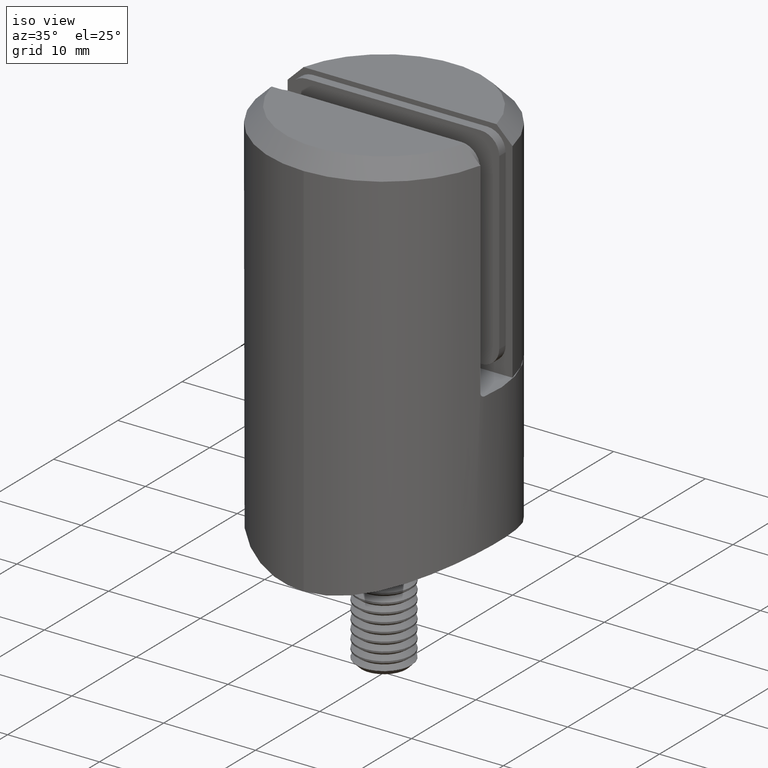
[diagram: clean part render]
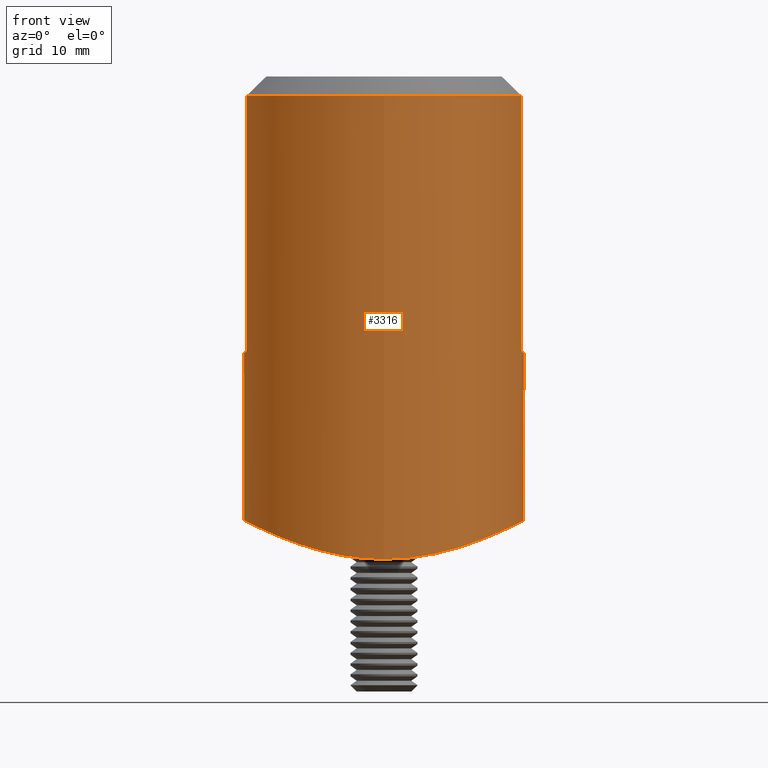
[diagram: tour spotlight — one face highlighted and labeled with its STEP entity id]
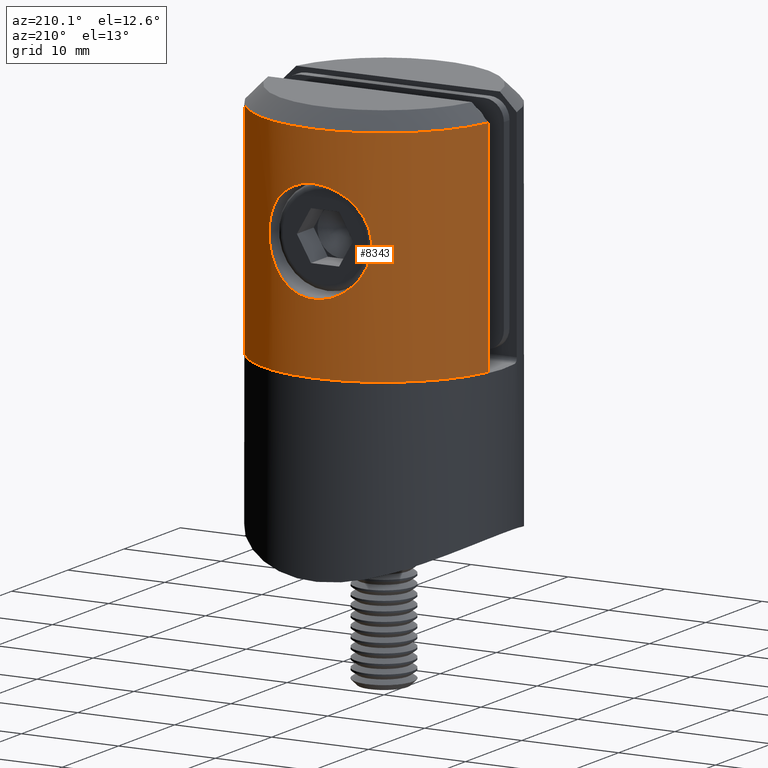
[diagram: tour spotlight — one face highlighted and labeled with its STEP entity id]
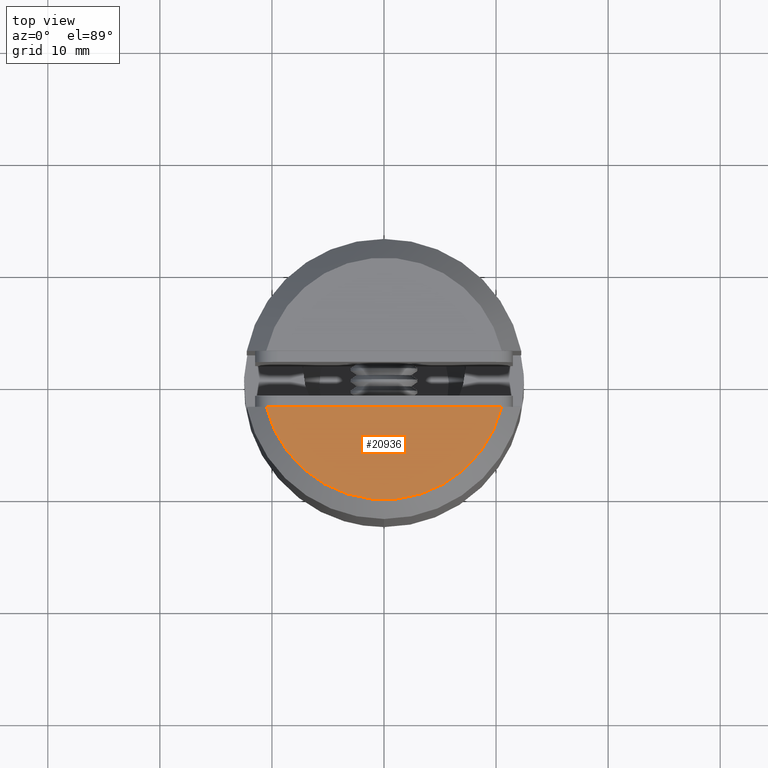
[diagram: tour spotlight — one face highlighted and labeled with its STEP entity id]
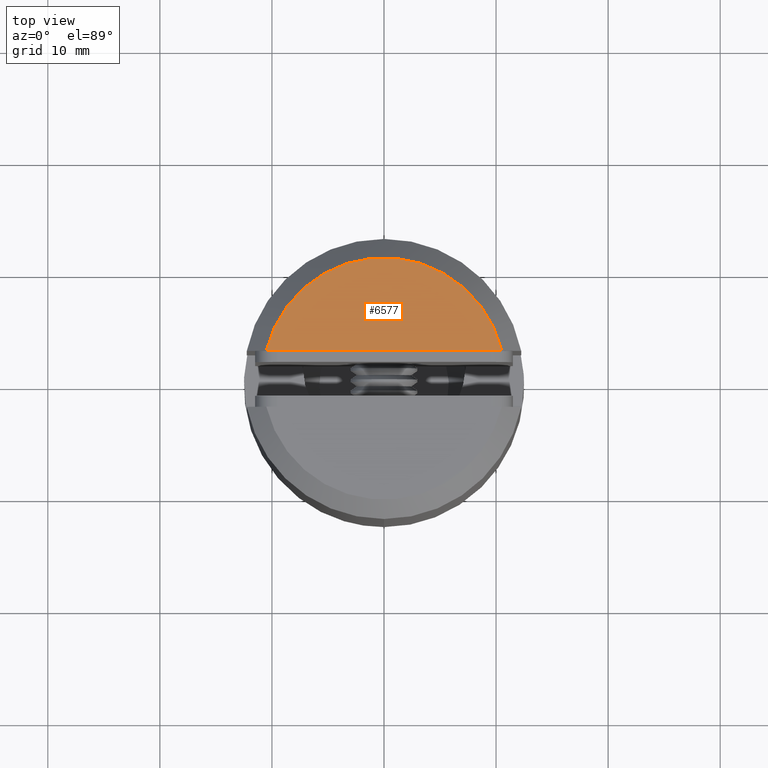
[diagram: tour spotlight — one face highlighted and labeled with its STEP entity id]
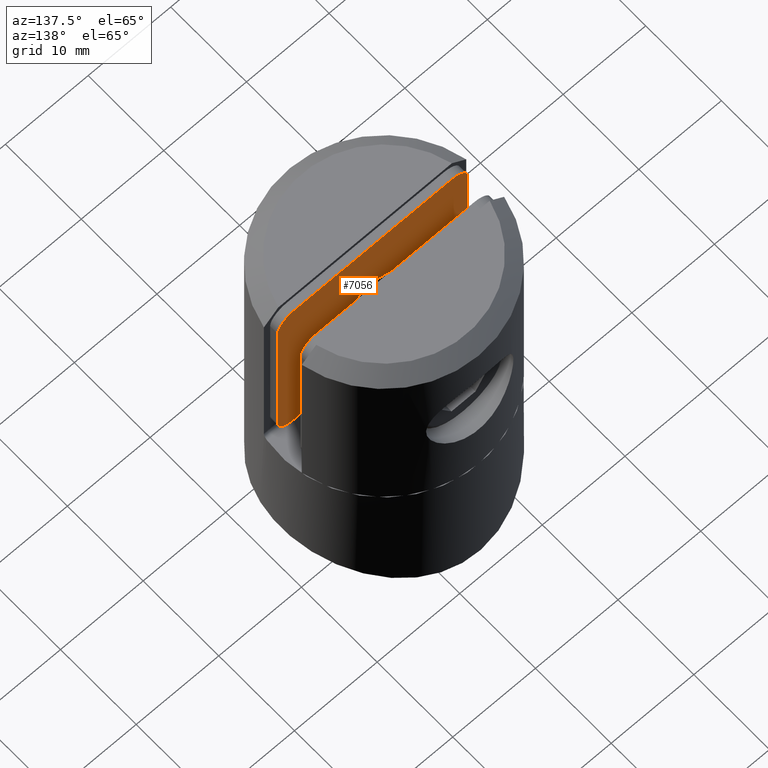
[diagram: tour spotlight — one face highlighted and labeled with its STEP entity id]
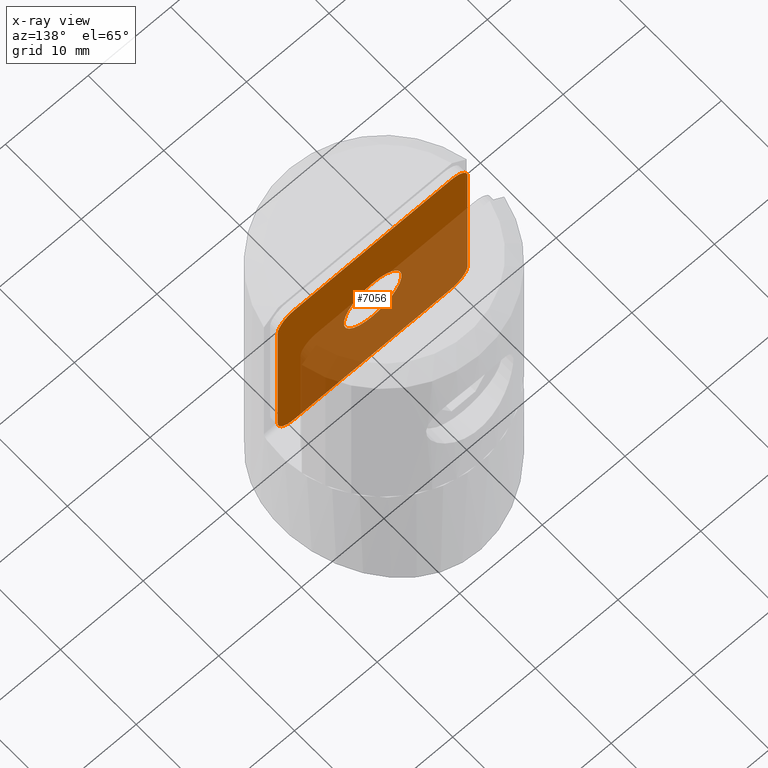
[diagram: x-ray of the same camera — body ghosted, this tour face saturated]
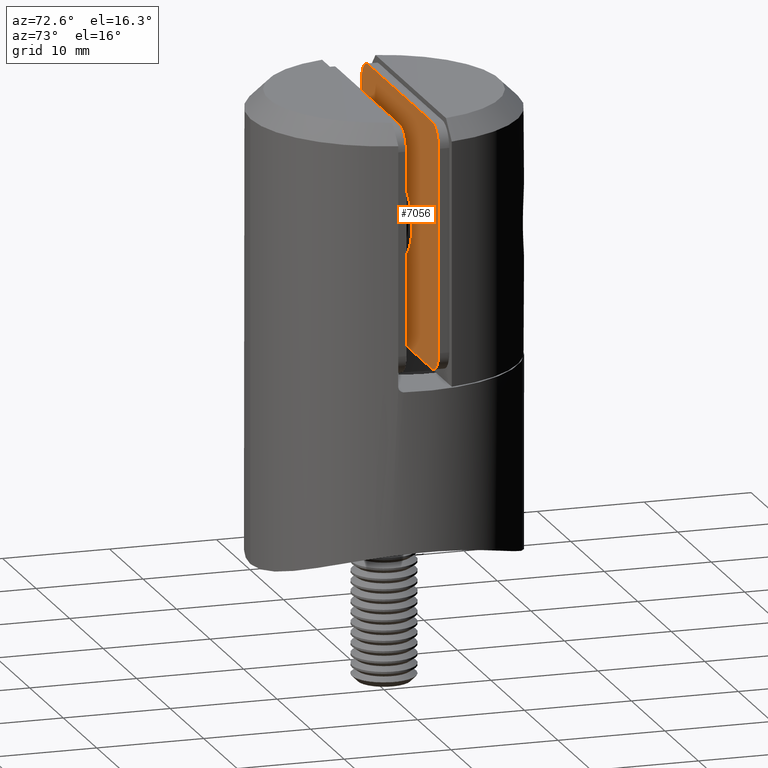
[diagram: tour spotlight — one face highlighted and labeled with its STEP entity id]
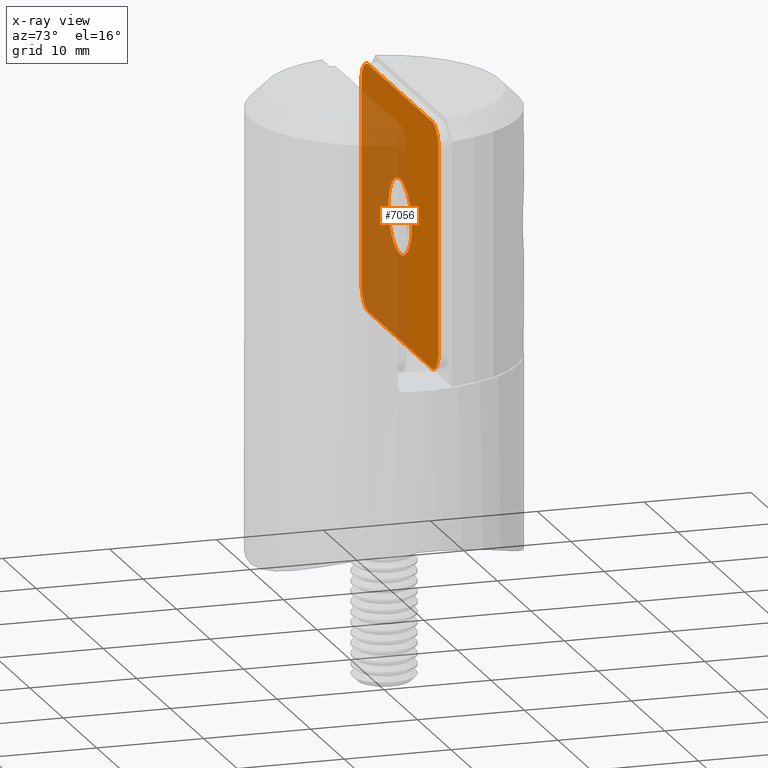
[diagram: x-ray of the same camera — body ghosted, this tour face saturated]
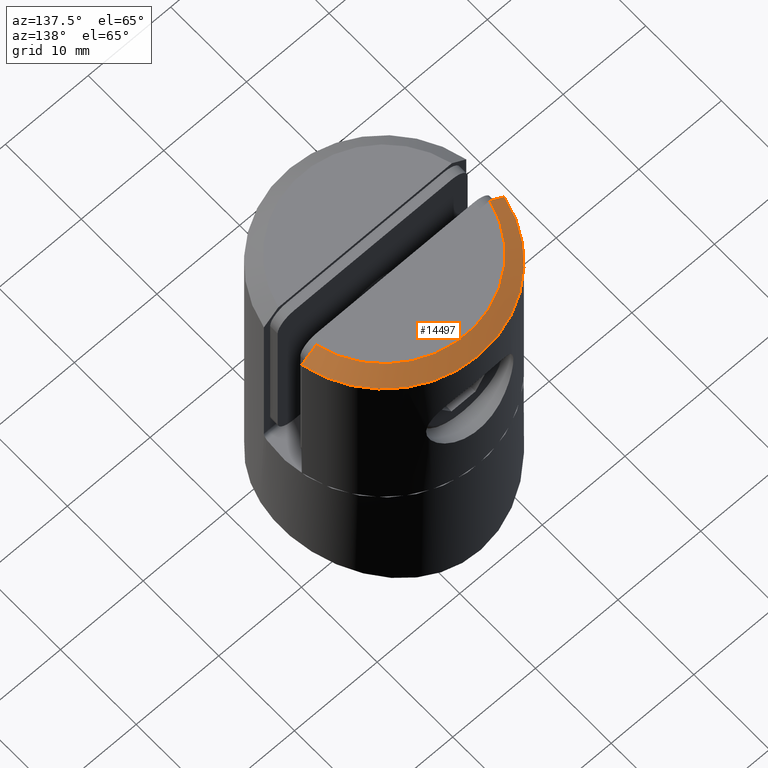
[diagram: tour spotlight — one face highlighted and labeled with its STEP entity id]
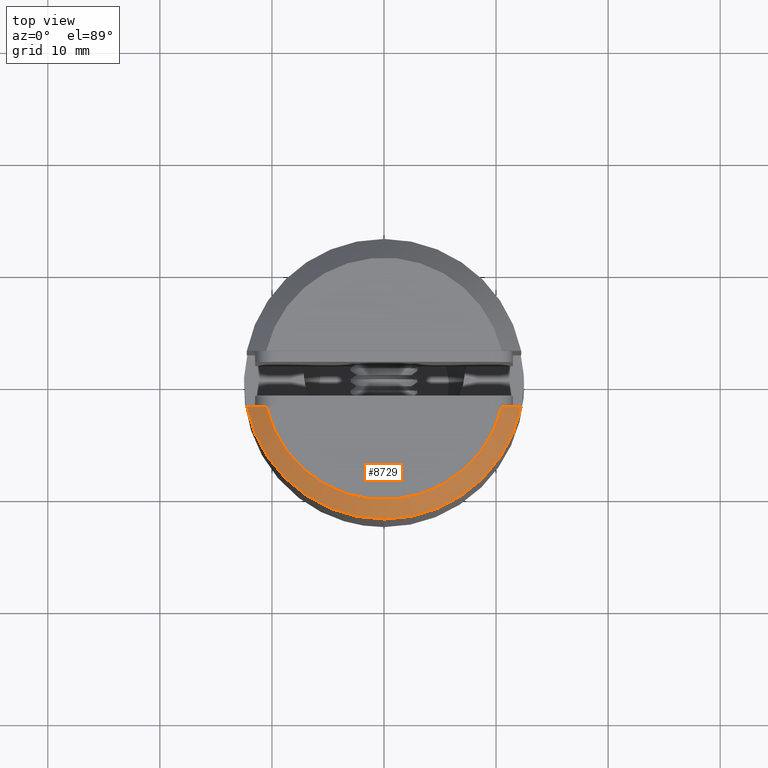
[diagram: tour spotlight — one face highlighted and labeled with its STEP entity id]
A machine part: a face-by-face anatomy tour. The part has 721 B-rep faces; the first image is the clean iso view, then the 8 largest visible faces are spotlighted one at a time (largest first), each with its STEP entity span.

Face 1 — front view, entity #3316. In plain terms, the highlighted cylindrical surface (bore or boss wall) has radius 12.5 mm, axis along (0, -0, 1).
Definition (entity closure, byte-faithful):
#29 = CARTESIAN_POINT ( 'NONE',  ( 12.24744871391589207, -2.500000000000003997, 39.59999999999999432 ) ) ;
#38 = CARTESIAN_POINT ( 'NONE',  ( -12.09338547203985037, -3.269625514794806342, -0.2083464742693253990 ) ) ;
#45 = VECTOR ( 'NONE', #22269, 1000.000000000000000 ) ;
#98 = DIRECTION ( 'NONE',  ( -0.000000000000000000, -0.000000000000000000, -1.000000000000000000 ) ) ;
#201 = CARTESIAN_POINT ( 'NONE',  ( 4.484795657498198196, 11.67477783134100555, -3.008711266696773468 ) ) ;
#220 = CARTESIAN_POINT ( 'NONE',  ( 9.893379601106229160, -7.650706578991893103, -1.241543153467105309 ) ) ;
#283 = CARTESIAN_POINT ( 'NONE',  ( -11.83144900502481534, 4.114442792479470867, -0.3407743584121446512 ) ) ;
#305 = CARTESIAN_POINT ( 'NONE',  ( 0.8420330696389416447, -12.49999999999999467, -3.486687100080005486 ) ) ;
#388 = CARTESIAN_POINT ( 'NONE',  ( 4.069045550123880695, -11.82642121061761209, -3.093460465655071268 ) ) ;
#1083 = ORIENTED_EDGE ( 'NONE', *, *, #2545, .T. ) ;
#1817 = CARTESIAN_POINT ( 'NONE',  ( -12.47717183604786584, 0.8617560206829455449, -0.01183519318938777536 ) ) ;
#1897 = CARTESIAN_POINT ( 'NONE',  ( -12.07689183496742480, 3.331619642185145835, -0.2166994813412659038 ) ) ;
#1974 = CARTESIAN_POINT ( 'NONE',  ( -12.49886017228204338, 0.4478171727676704128, -0.0005899714594872679024 ) ) ;
#2045 = CARTESIAN_POINT ( 'NONE',  ( -9.896185449625617636, 7.679408471396363289, -1.242758516869269192 ) ) ;
#2068 = CARTESIAN_POINT ( 'NONE',  ( 11.20163797133091244, -5.606760663478955742, -0.6473854300975461218 ) ) ;
#2108 = CARTESIAN_POINT ( 'NONE',  ( -12.33896267925306667, -2.000000000000003997, 15.00000000000000000 ) ) ;
#2127 = CARTESIAN_POINT ( 'NONE',  ( -11.19774646827645626, -5.570164365274847817, -0.6482365588539855672 ) ) ;
#2146 = CARTESIAN_POINT ( 'NONE',  ( 10.82995629359309220, 6.294224417705431840, -0.8240927564725724075 ) ) ;
#2195 = CARTESIAN_POINT ( 'NONE',  ( 12.31766359438306857, -2.131404306656573766, 15.00000000000000000 ) ) ;
#2220 = CARTESIAN_POINT ( 'NONE',  ( 11.67600036255593388, -4.481811032179747301, -0.4164286492411054530 ) ) ;
#2545 = EDGE_CURVE ( 'NONE', #23162, #18210, #17465, .T. ) ;
#2609 = VERTEX_POINT ( 'NONE', #11389 ) ;
#3125 = CARTESIAN_POINT ( 'NONE',  ( 12.33896267925306667, -2.000000000000003997, 15.00000000000000000 ) ) ;
#3316 = ADVANCED_FACE ( 'NONE', ( #14508, #9908 ), #8494, .T. ) ;
#3637 = CARTESIAN_POINT ( 'NONE',  ( -9.396734289905666060, -8.253168535166967246, -1.451608363106684951 ) ) ;
#3723 = CARTESIAN_POINT ( 'NONE',  ( 3.794707603699265519E-16, -12.50000000000000000, -3.486687100080006374 ) ) ;
#3806 = CARTESIAN_POINT ( 'NONE',  ( -3.257362557410850457, 12.09644236928157746, -3.247036497938600608 ) ) ;
#3885 = CARTESIAN_POINT ( 'NONE',  ( 6.314141496897319072, 10.81854343925186157, -2.552913839582434452 ) ) ;
#3902 = CARTESIAN_POINT ( 'NONE',  ( 12.06234186209243653, -3.304806806487619930, -0.2238365123167636028 ) ) ;
#3940 = CARTESIAN_POINT ( 'NONE',  ( -12.31767007144812887, -2.131364346524550424, 15.00000000000000000 ) ) ;
#3959 = CARTESIAN_POINT ( 'NONE',  ( 4.102638119957512153, 11.81469052628676408, -3.086874833940652429 ) ) ;
#3978 = CARTESIAN_POINT ( 'NONE',  ( 2.877892738570855702, -12.17117554739143159, -3.291094421596790554 ) ) ;
#4059 = CARTESIAN_POINT ( 'NONE',  ( 12.41359620020111443, -1.684281685711139120, -0.04502740789206238076 ) ) ;
#4395 = EDGE_CURVE ( 'NONE', #10058, #10058, #13633, .T. ) ;
#5243 = DIRECTION ( 'NONE',  ( -0.000000000000000000, -8.839393595184489370E-19, 1.000000000000000000 ) ) ;
#5420 = CARTESIAN_POINT ( 'NONE',  ( 3.794707603699265519E-16, -12.50000000000000000, -3.486687100080006374 ) ) ;
#5479 = CARTESIAN_POINT ( 'NONE',  ( -0.3743966600937669309, 12.50127237248500833, -3.487456799512486327 ) ) ;
#5563 = CARTESIAN_POINT ( 'NONE',  ( -10.79181700430863877, 6.320805790922927159, -0.8389214614204771880 ) ) ;
#5624 = ORIENTED_EDGE ( 'NONE', *, *, #21160, .T. ) ;
#5641 = CARTESIAN_POINT ( 'NONE',  ( -9.384542520102025165, 8.295979379960838784, -1.461483283196771898 ) ) ;
#5721 = CARTESIAN_POINT ( 'NONE',  ( -6.276934725431979167, 10.83971380107705507, -2.563679882834653867 ) ) ;
#5741 = CARTESIAN_POINT ( 'NONE',  ( 4.456470322436524967, -11.68571052798450438, -3.014750073192299595 ) ) ;
#5804 = CARTESIAN_POINT ( 'NONE',  ( -2.040490887379597940, 12.33926574575910706, -3.390090410938651821 ) ) ;
#5826 = CARTESIAN_POINT ( 'NONE',  ( 9.396216651987572277, 8.253756614523814150, -1.451822711364580520 ) ) ;
#5906 = CARTESIAN_POINT ( 'NONE',  ( 8.544220005459459699, -9.132697872976139664, -1.791368050699008174 ) ) ;
#6132 = CARTESIAN_POINT ( 'NONE',  ( -12.24744871391589207, -2.500000000000003997, 37.89999999999999858 ) ) ;
#7311 = VERTEX_POINT ( 'NONE', #3125 ) ;
#7352 = CARTESIAN_POINT ( 'NONE',  ( -7.651204074273035616, -9.917544363711913391, -2.124719512559996915 ) ) ;
#7428 = CARTESIAN_POINT ( 'NONE',  ( -1.628004865284973235, 12.40066171425556085, -3.426864559967107926 ) ) ;
#7513 = CARTESIAN_POINT ( 'NONE',  ( -4.044332357530218580, 11.85628279557731268, -3.107641007429138735 ) ) ;
#7538 = CARTESIAN_POINT ( 'NONE',  ( 12.17505368981022329, 2.861587711683103663, -0.1666816797375139658 ) ) ;
#7599 = CARTESIAN_POINT ( 'NONE',  ( -11.85217655018235661, -4.056448218479623335, -0.3304757533166574057 ) ) ;
#7619 = CARTESIAN_POINT ( 'NONE',  ( 5.583598371836742125, -11.21326278727308967, -2.758092237636965649 ) ) ;
#7673 = CARTESIAN_POINT ( 'NONE',  ( -4.092446727226314529, -11.83899578688737009, -3.097948591304157340 ) ) ;
#7691 = CARTESIAN_POINT ( 'NONE',  ( 10.81700827973986101, -6.316522095881035526, -0.8301302491084197044 ) ) ;
#7771 = CARTESIAN_POINT ( 'NONE',  ( 12.07408571571930089, 3.261416190376115853, -0.2179059763215995538 ) ) ;
#7875 = CIRCLE ( 'NONE', #12296, 12.50000000000000178 ) ;
#7972 = CARTESIAN_POINT ( 'NONE',  ( -12.24744871391589207, -2.500000000000003997, 15.50000000000000000 ) ) ;
#8086 = CARTESIAN_POINT ( 'NONE',  ( 0.000000000000000000, -12.50000000000000000, -3.486687100080005486 ) ) ;
#8113 = VECTOR ( 'NONE', #98, 1000.000000000000000 ) ;
#8494 = CYLINDRICAL_SURFACE ( 'NONE', #18767, 12.50000000000000000 ) ;
#8577 = CARTESIAN_POINT ( 'NONE',  ( 0.000000000000000000, -9.766859891323573861E-36, 15.00000000000000000 ) ) ;
#8725 = EDGE_CURVE ( 'NONE', #2609, #16452, #14283, .T. ) ;
#9172 = CARTESIAN_POINT ( 'NONE',  ( -1.677142387246838728, -12.39408917981394787, -3.422928609231023600 ) ) ;
#9341 = CARTESIAN_POINT ( 'NONE',  ( -12.39246884653307923, 1.687944416489005839, -0.05550960641048760524 ) ) ;
#9359 = CARTESIAN_POINT ( 'NONE',  ( 11.69115801580465153, 4.442511902019132819, -0.4089703082988599969 ) ) ;
#9416 = CARTESIAN_POINT ( 'NONE',  ( -6.301623554939014937, -10.80307550227448488, -2.549915663960815149 ) ) ;
#9438 = CARTESIAN_POINT ( 'NONE',  ( 10.13775191039843726, -7.323934467288832018, -1.134667000770246181 ) ) ;
#9492 = CARTESIAN_POINT ( 'NONE',  ( 12.33896267925306667, -2.000000000000003997, 15.00000000000000000 ) ) ;
#9497 = CARTESIAN_POINT ( 'NONE',  ( -12.33816267713975989, -2.047522294877610616, -0.08347067834122730290 ) ) ;
#9696 = DIRECTION ( 'NONE',  ( 0.000000000000000000, -1.000000000000000000, 0.000000000000000000 ) ) ;
#9908 = FACE_OUTER_BOUND ( 'NONE', #18401, .T. ) ;
#10058 = VERTEX_POINT ( 'NONE', #8086 ) ;
#10225 = EDGE_CURVE ( 'NONE', #7311, #14604, #11832, .T. ) ;
#10406 = EDGE_LOOP ( 'NONE', ( #18437 ) ) ;
#10777 = DIRECTION ( 'NONE',  ( 0.000000000000000000, -1.000000000000000000, 0.000000000000000000 ) ) ;
#11014 = CARTESIAN_POINT ( 'NONE',  ( -7.616732032239020178, 9.944078538791721655, -2.136733238695819992 ) ) ;
#11090 = CARTESIAN_POINT ( 'NONE',  ( -6.649254742986303590, -10.59242955421302668, -2.445507888269208507 ) ) ;
#11165 = CARTESIAN_POINT ( 'NONE',  ( 12.25896829256023501, -2.444702917753897253, 15.23688351496662996 ) ) ;
#11169 = CARTESIAN_POINT ( 'NONE',  ( -11.18041048547914862, 5.604848033375923855, -0.6564977706356068810 ) ) ;
#11178 = ORIENTED_EDGE ( 'NONE', *, *, #14765, .F. ) ;
#11187 = CARTESIAN_POINT ( 'NONE',  ( 9.380255193395514723, -8.271824683598607564, -1.458423971634351890 ) ) ;
#11250 = CARTESIAN_POINT ( 'NONE',  ( -10.60149335878784171, -6.634860695765055105, -0.9266566134114211373 ) ) ;
#11271 = CARTESIAN_POINT ( 'NONE',  ( 3.277664399894878677, -12.06972602926805926, -3.231974056073402934 ) ) ;
#11329 = CARTESIAN_POINT ( 'NONE',  ( -5.564717128929109968, 11.22327889798126144, -2.763314317569939949 ) ) ;
#11348 = CARTESIAN_POINT ( 'NONE',  ( 12.50092854068959625, 0.3879436103226354127, 0.0004806101693038293868 ) ) ;
#11382 = CARTESIAN_POINT ( 'NONE',  ( -12.24744871391589207, -2.500000000000003997, 39.59999999999999432 ) ) ;
#11389 = CARTESIAN_POINT ( 'NONE',  ( 12.24744871391589207, -2.500000000000003997, 37.89999999999999858 ) ) ;
#11832 = B_SPLINE_CURVE_WITH_KNOTS ( 'NONE', 3,
 ( #9492, #2195, #20363, #11165, #14856, #20451 ),
 .UNSPECIFIED., .F., .F.,
 ( 4, 2, 4 ),
 ( 0.000000000000000000, 0.0003936914607459281678, 0.0007873829214918563356 ),
 .UNSPECIFIED. ) ;
#12296 = AXIS2_PLACEMENT_3D ( 'NONE', #8577, #15849, #9696 ) ;
#12606 = CARTESIAN_POINT ( 'NONE',  ( -12.24744871391589207, -2.500000000000003997, 15.50000000000000000 ) ) ;
#12859 = CARTESIAN_POINT ( 'NONE',  ( -0.4210165348194701562, -12.50000000000000355, -3.486687100080006374 ) ) ;
#13025 = CARTESIAN_POINT ( 'NONE',  ( -8.247693690637230901, 9.427006999560417100, -1.907616950703464154 ) ) ;
#13082 = CARTESIAN_POINT ( 'NONE',  ( -12.25895434034246101, -2.444765932025573907, 15.23707057295127143 ) ) ;
#13101 = CARTESIAN_POINT ( 'NONE',  ( -12.32921864664979417, 2.101337436378892587, -0.08806124254263981987 ) ) ;
#13120 = CARTESIAN_POINT ( 'NONE',  ( 12.16596872606742608, -2.900042898125258173, -0.1712958376644658220 ) ) ;
#13207 = CARTESIAN_POINT ( 'NONE',  ( 6.293961627254427427, -10.83014519783097995, -2.558789604559105424 ) ) ;
#13633 = B_SPLINE_CURVE_WITH_KNOTS ( 'NONE', 3,
 ( #5420, #305, #22298, #3978, #11271, #388, #5741, #7619, #13207, #20555, #14884, #16878, #5906, #18722, #11187, #220, #9438, #7691, #2068, #2220, #15047, #3902, #13120, #4059, #20394, #11348, #16722, #18559, #16804, #7538, #7771, #20308, #9359, #22146, #2146, #22221, #14963, #5826, #18639, #20476, #18464, #3885, #21960, #201, #3959, #20286, #14789, #14859, #16457, #5479, #18621, #7428, #5804, #3806, #7513, #11329, #5721, #11014, #13025, #5641, #2045, #16701, #5563, #11169, #18304, #283, #1897, #13101, #9341, #1817, #1974, #16614, #14711, #18540, #9497, #38, #7599, #14940, #2127, #14626, #11250, #20204, #22125, #3637, #18381, #20368, #7352, #11090, #9416, #22202, #16785, #7673, #20455, #20128, #9172, #22278, #12859, #3723 ),
 .UNSPECIFIED., .T., .F.,
 ( 4, 2, 2, 2, 2, 2, 2, 2, 2, 2, 2, 2, 2, 2, 2, 2, 2, 2, 2, 2, 2, 2, 2, 2, 2, 2, 2, 2, 2, 2, 2, 2, 2, 2, 2, 2, 2, 2, 2, 2, 2, 2, 2, 2, 2, 2, 2, 2, 4 ),
 ( 0.000000000000000000, 0.002485739536903473334, 0.003728609305355210218, 0.004971479073806947535, 0.007457218610710422170, 0.008700088379162158186, 0.009942958147613895070, 0.01118582791606563195, 0.01242869768451736537, 0.01491443722142083914, 0.01615730698987257602, 0.01740017675832431290, 0.01988591629522777973, 0.02112878606367952009, 0.02237165583213125350, 0.02361452560058299038, 0.02485739536903472380, 0.02734313490593820103, 0.02858600467438993445, 0.02982887444284167480, 0.03231461397974513816, 0.03480035351664859805, 0.03604322328510033147, 0.03728609305355207182, 0.03977183259045552477, 0.04101470235890725818, 0.04225757212735900548, 0.04474331166426246537, 0.04722905120116593219, 0.04971479073806939208, 0.05220053027497285891, 0.05344340004342458539, 0.05468626981187631880, 0.05717200934877977175, 0.05841487911723150517, 0.05965774888568323164, 0.06090061865413495812, 0.06214348842258669153, 0.06462922795949015142, 0.06587209772794189178, 0.06711496749639360437, 0.06835783726484533085, 0.06960070703329707120, 0.07208644657020055191, 0.07332931633865227838, 0.07457218610710401874, 0.07705792564400748557, 0.07830079541245922592, 0.07954366518091096627 ),
 .UNSPECIFIED. ) ;
#13964 = LINE ( 'NONE', #11382, #8113 ) ;
#14283 = CIRCLE ( 'NONE', #19584, 12.50000000000000000 ) ;
#14508 = FACE_OUTER_BOUND ( 'NONE', #10406, .T. ) ;
#14604 = VERTEX_POINT ( 'NONE', #22404 ) ;
#14626 = CARTESIAN_POINT ( 'NONE',  ( -10.81093404035207861, -6.288080963150203040, -0.8300588829938706503 ) ) ;
#14678 = LINE ( 'NONE', #29, #45 ) ;
#14711 = CARTESIAN_POINT ( 'NONE',  ( -12.48155879906584254, -0.7973743908658439405, -0.009565081974144943114 ) ) ;
#14765 = EDGE_CURVE ( 'NONE', #7311, #18210, #7875, .T. ) ;
#14789 = CARTESIAN_POINT ( 'NONE',  ( 2.913643217103089267, 12.16279320612885506, -3.286196029300535670 ) ) ;
#14856 = CARTESIAN_POINT ( 'NONE',  ( 12.24744871391589207, -2.500000000000003997, 15.36682287106853018 ) ) ;
#14859 = CARTESIAN_POINT ( 'NONE',  ( 1.691695994183606500, 12.41287984916325193, -3.433332008704867544 ) ) ;
#14884 = CARTESIAN_POINT ( 'NONE',  ( 7.627850411005501208, -9.910951493450541605, -2.125630541354957881 ) ) ;
#14931 = DIRECTION ( 'NONE',  ( 0.000000000000000000, 8.839393595184493222E-19, -1.000000000000000000 ) ) ;
#14940 = CARTESIAN_POINT ( 'NONE',  ( -11.37593658114307260, -5.196901209690826917, -0.5626046438230178914 ) ) ;
#14963 = CARTESIAN_POINT ( 'NONE',  ( 9.909828926624138390, 7.629461073229731660, -1.234435983153442384 ) ) ;
#15047 = CARTESIAN_POINT ( 'NONE',  ( 11.81688690885650139, -4.096708802134998884, -0.3466383832437867629 ) ) ;
#15849 = DIRECTION ( 'NONE',  ( -0.000000000000000000, -8.839393595184489370E-19, 1.000000000000000000 ) ) ;
#16059 = ORIENTED_EDGE ( 'NONE', *, *, #23111, .F. ) ;
#16216 = CARTESIAN_POINT ( 'NONE',  ( 0.000000000000000000, 0.000000000000000000, 15.00000000000000000 ) ) ;
#16452 = VERTEX_POINT ( 'NONE', #6132 ) ;
#16457 = CARTESIAN_POINT ( 'NONE',  ( 0.8697247223646115133, 12.49726026246925414, -3.485029743442990657 ) ) ;
#16614 = CARTESIAN_POINT ( 'NONE',  ( -12.50105252505067988, -0.3817480745307741397, 0.0005447838012706917969 ) ) ;
#16701 = CARTESIAN_POINT ( 'NONE',  ( -10.57822623642860904, 6.671999694388289548, -0.9372868499320518021 ) ) ;
#16722 = CARTESIAN_POINT ( 'NONE',  ( 12.48069636923811032, 0.8102970494848512617, -0.01001137047313410862 ) ) ;
#16785 = CARTESIAN_POINT ( 'NONE',  ( -5.215888575521388404, -11.36703530970261866, -2.841666989014574707 ) ) ;
#16804 = CARTESIAN_POINT ( 'NONE',  ( 12.33740749156253713, 2.051583039643746886, -0.08385679187169681192 ) ) ;
#16878 = CARTESIAN_POINT ( 'NONE',  ( 8.247887123866176395, -9.401245629711461049, -1.903283609344564864 ) ) ;
#17445 = ORIENTED_EDGE ( 'NONE', *, *, #10225, .T. ) ;
#17465 = B_SPLINE_CURVE_WITH_KNOTS ( 'NONE', 3,
 ( #12606, #18361, #13082, #20187, #3940, #2108 ),
 .UNSPECIFIED., .F., .F.,
 ( 4, 2, 4 ),
 ( 0.000000000000000000, 0.0003936892246295770016, 0.0007873784492591540032 ),
 .UNSPECIFIED. ) ;
#18082 = ORIENTED_EDGE ( 'NONE', *, *, #8725, .T. ) ;
#18210 = VERTEX_POINT ( 'NONE', #22983 ) ;
#18304 = CARTESIAN_POINT ( 'NONE',  ( -11.35662396471363778, 5.238563580492675342, -0.5719107453701092192 ) ) ;
#18361 = CARTESIAN_POINT ( 'NONE',  ( -12.24744871391589029, -2.500000000000004441, 15.36686227763975232 ) ) ;
#18381 = CARTESIAN_POINT ( 'NONE',  ( -9.123033322756716856, -8.554673202275385080, -1.563860818461812352 ) ) ;
#18401 = EDGE_LOOP ( 'NONE', ( #16059, #18082, #5624, #1083, #11178, #17445 ) ) ;
#18437 = ORIENTED_EDGE ( 'NONE', *, *, #4395, .T. ) ;
#18464 = CARTESIAN_POINT ( 'NONE',  ( 7.660638710391054040, 9.910796110236475442, -2.121583506098287053 ) ) ;
#18540 = CARTESIAN_POINT ( 'NONE',  ( -12.40028448259200111, -1.630356011592186682, -0.05148670091626032785 ) ) ;
#18559 = CARTESIAN_POINT ( 'NONE',  ( 12.39879605956213204, 1.641407762533053205, -0.05225294972190851900 ) ) ;
#18621 = CARTESIAN_POINT ( 'NONE',  ( -0.7909733677573256294, 12.48203396583641300, -3.475774948185915036 ) ) ;
#18639 = CARTESIAN_POINT ( 'NONE',  ( 9.126313188802841481, 8.551058549488844918, -1.562515289534434526 ) ) ;
#18722 = CARTESIAN_POINT ( 'NONE',  ( 9.110404565243220176, -8.567986612871896668, -1.568941599539361187 ) ) ;
#18767 = AXIS2_PLACEMENT_3D ( 'NONE', #16216, #5243, #10777 ) ;
#19584 = AXIS2_PLACEMENT_3D ( 'NONE', #20690, #14931, #20607 ) ;
#20128 = CARTESIAN_POINT ( 'NONE',  ( -2.094087766589294297, -12.33032306980452297, -3.384766971645867706 ) ) ;
#20187 = CARTESIAN_POINT ( 'NONE',  ( -12.29434662337031270, -2.260062628649262884, 15.05355174199154789 ) ) ;
#20204 = CARTESIAN_POINT ( 'NONE',  ( -10.15119579843601194, -7.305221540134546387, -1.128731730133334610 ) ) ;
#20286 = CARTESIAN_POINT ( 'NONE',  ( 3.318548173878620666, 12.05843231074858757, -3.225460239228502779 ) ) ;
#20308 = CARTESIAN_POINT ( 'NONE',  ( 11.83262100143875983, 4.050859374712338479, -0.3388156898625469537 ) ) ;
#20363 = CARTESIAN_POINT ( 'NONE',  ( 12.29442487639846426, -2.259644421732414532, 15.05326098892263609 ) ) ;
#20368 = CARTESIAN_POINT ( 'NONE',  ( -8.268713339598264156, -9.408882087207889100, -1.899833601269630412 ) ) ;
#20394 = CARTESIAN_POINT ( 'NONE',  ( 12.49804306648666596, -0.8624256519354629447, -0.001012903587479328966 ) ) ;
#20451 = CARTESIAN_POINT ( 'NONE',  ( 12.24744871391589207, -2.500000000000003997, 15.50000000000000000 ) ) ;
#20455 = CARTESIAN_POINT ( 'NONE',  ( -3.313376155758726238, -12.08138323082996735, -3.238286580477632626 ) ) ;
#20476 = CARTESIAN_POINT ( 'NONE',  ( 8.277712026250993560, 9.400545864899111592, -1.896404585075764260 ) ) ;
#20555 = CARTESIAN_POINT ( 'NONE',  ( 7.302698090390232544, -10.15305865704882038, -2.236525201531821327 ) ) ;
#20607 = DIRECTION ( 'NONE',  ( 0.000000000000000000, 1.000000000000000000, 0.000000000000000000 ) ) ;
#20690 = CARTESIAN_POINT ( 'NONE',  ( 0.000000000000000000, -2.024221133297247584E-17, 37.89999999999999858 ) ) ;
#21160 = EDGE_CURVE ( 'NONE', #16452, #23162, #13964, .T. ) ;
#21960 = CARTESIAN_POINT ( 'NONE',  ( 5.603627442956465643, 11.20288701555496047, -2.752665367364758087 ) ) ;
#22125 = CARTESIAN_POINT ( 'NONE',  ( -9.910338502366897728, -7.628800492440675818, -1.234215553069204496 ) ) ;
#22146 = CARTESIAN_POINT ( 'NONE',  ( 11.21529220319449394, 5.580642597169684471, -0.6408839066645837246 ) ) ;
#22202 = CARTESIAN_POINT ( 'NONE',  ( -5.582781965014255832, -11.19148985913479066, -2.748583262673203187 ) ) ;
#22221 = CARTESIAN_POINT ( 'NONE',  ( 10.15328722323789101, 7.302366886690106362, -1.127812543316114358 ) ) ;
#22269 = DIRECTION ( 'NONE',  ( -0.000000000000000000, -0.000000000000000000, -1.000000000000000000 ) ) ;
#22278 = CARTESIAN_POINT ( 'NONE',  ( -0.8417648872216074718, -12.47868923641108907, -3.473751549754170664 ) ) ;
#22298 = CARTESIAN_POINT ( 'NONE',  ( 1.666211658369161963, -12.41583110347700725, -3.435139089374208421 ) ) ;
#22404 = CARTESIAN_POINT ( 'NONE',  ( 12.24744871391589207, -2.500000000000003997, 15.50000000000000000 ) ) ;
#22983 = CARTESIAN_POINT ( 'NONE',  ( -12.33896267925306667, -2.000000000000003997, 15.00000000000000000 ) ) ;
#23111 = EDGE_CURVE ( 'NONE', #2609, #14604, #14678, .T. ) ;
#23162 = VERTEX_POINT ( 'NONE', #7972 ) ;

Face 2 — auxiliary view, entity #8343. In plain terms, the highlighted cylindrical surface (partial cylindrical patch) has radius 12.5 mm, axis along (-0, -0, -1).
Definition (entity closure, byte-faithful):
#347 = DIRECTION ( 'NONE',  ( 0.000000000000000000, 0.000000000000000000, 1.000000000000000000 ) ) ;
#493 = CARTESIAN_POINT ( 'NONE',  ( -1.726263214081570130, 12.38441289598844364, 7.485621125469169357 ) ) ;
#575 = CARTESIAN_POINT ( 'NONE',  ( 0.3540125968132148970, 12.50000000000000533, 17.79201239237409382 ) ) ;
#649 = CYLINDRICAL_SURFACE ( 'NONE', #15012, 12.50000000000000000 ) ;
#658 = CARTESIAN_POINT ( 'NONE',  ( 2.352795880033144549, 12.27756303121973858, 7.756616542949289261 ) ) ;
#736 = CARTESIAN_POINT ( 'NONE',  ( 0.1670841722139269347, 12.50009934360470432, 7.207752952840593252 ) ) ;
#1000 = LINE ( 'NONE', #5289, #18745 ) ;
#1489 = ORIENTED_EDGE ( 'NONE', *, *, #6989, .T. ) ;
#1534 = CARTESIAN_POINT ( 'NONE',  ( 12.24744871391589029, 2.500000000000000444, 24.50000000000000000 ) ) ;
#1570 = VECTOR ( 'NONE', #1608, 1000.000000000000000 ) ;
#1608 = DIRECTION ( 'NONE',  ( -0.000000000000000000, -0.000000000000000000, -1.000000000000000000 ) ) ;
#1625 = CARTESIAN_POINT ( 'NONE',  ( -3.984381975254525976, 11.85067304244556219, 15.99946473797774971 ) ) ;
#1680 = DIRECTION ( 'NONE',  ( -0.000000000000000000, -0.000000000000000000, -1.000000000000000000 ) ) ;
#1934 = AXIS2_PLACEMENT_3D ( 'NONE', #14842, #347, #18764 ) ;
#2254 = CARTESIAN_POINT ( 'NONE',  ( 2.364320850874946256, 12.27871224900708391, 17.24736782578233374 ) ) ;
#2328 = CARTESIAN_POINT ( 'NONE',  ( 4.204895558547546486, 11.77329513344856338, 15.73139563118424888 ) ) ;
#2414 = CARTESIAN_POINT ( 'NONE',  ( -3.240249260250868790, 12.07630773496677001, 8.301818445996673290 ) ) ;
#2568 = CARTESIAN_POINT ( 'NONE',  ( 4.749221581186708008, 11.56355666287305972, 10.14000020676140501 ) ) ;
#3037 = EDGE_CURVE ( 'NONE', #20470, #22541, #23333, .T. ) ;
#3334 = B_SPLINE_CURVE_WITH_KNOTS ( 'NONE', 3,
 ( #5202, #18591, #11302, #18031, #21697, #19862, #20508, #16829, #10739, #23513, #12591, #1625, #14433, #12666, #18109, #7570, #7148, #10817, #23595, #18512, #11454, #15314, #6246, #15389, #17232, #18987, #4162, #5932, #8029, #20822, #2414, #9941, #9702, #13401, #9867, #493, #7879, #6170, #22642, #736, #15072, #11693, #17065, #4093, #20665, #15148, #658, #20902, #17149, #13566, #15229, #18750, #9628, #22491, #2568, #22722, #13324, #4398, #11535, #4237, #22410, #11779, #13237, #20744, #6094, #2328, #18906, #22561, #16903, #19066, #2254, #8116, #13484, #7953, #575, #16992 ),
 .UNSPECIFIED., .T., .F.,
 ( 4, 2, 2, 2, 2, 2, 2, 2, 2, 2, 2, 2, 2, 2, 2, 2, 2, 2, 2, 2, 2, 2, 2, 2, 2, 2, 2, 2, 2, 2, 2, 2, 2, 2, 2, 2, 2, 4 ),
 ( 0.000000000000000000, 0.001046123003756083266, 0.002092246007512166533, 0.003138369011268249582, 0.003661430513146289156, 0.004184492015024328729, 0.005230615018780398334, 0.006276738022536471409, 0.006799799524414507079, 0.007322861026292541882, 0.008368984030048610620, 0.009415107033804681960, 0.01046123003756075157, 0.01150735304131682291, 0.01255347604507289078, 0.01359959904882896212, 0.01412266055070699779, 0.01464572205258503519, 0.01569184505634110827, 0.01673796806009717961, 0.01726102956197521701, 0.01778409106385325789, 0.01883021406760932923, 0.01935327556948736316, 0.01987633707136539710, 0.02092246007512147191, 0.02196858307887754325, 0.02301470608263361459, 0.02406082908638968940, 0.02510695209014575727, 0.02615307509390182861, 0.02719919809765789995, 0.02824532110141397476, 0.02929144410517004610, 0.03033756710892611397, 0.03138369011268218184, 0.03242981311643824971, 0.03347593612019431758 ),
 .UNSPECIFIED. ) ;
#4057 = DIRECTION ( 'NONE',  ( -1.000000000000000000, 0.000000000000000000, 0.000000000000000000 ) ) ;
#4093 = CARTESIAN_POINT ( 'NONE',  ( 1.381742631545303635, 12.42816616368229354, 7.379589180595749198 ) ) ;
#4162 = CARTESIAN_POINT ( 'NONE',  ( -4.587983894090647219, 11.62935370851508310, 9.840455202807360635 ) ) ;
#4237 = CARTESIAN_POINT ( 'NONE',  ( 5.292357171095976476, 11.32435233117508844, 12.84378072666122073 ) ) ;
#4398 = CARTESIAN_POINT ( 'NONE',  ( 5.255824966533535481, 11.34160907200074497, 11.79059847808417061 ) ) ;
#5016 = VERTEX_POINT ( 'NONE', #18989 ) ;
#5202 = CARTESIAN_POINT ( 'NONE',  ( -2.168404344971008868E-16, 12.50000000000000355, 17.79201239237408672 ) ) ;
#5289 = CARTESIAN_POINT ( 'NONE',  ( -12.24744871391589029, 2.500000000000000444, 24.50000000000000000 ) ) ;
#5528 = DIRECTION ( 'NONE',  ( -0.000000000000000000, -0.000000000000000000, -1.000000000000000000 ) ) ;
#5932 = CARTESIAN_POINT ( 'NONE',  ( -4.206762273487220760, 11.77262141855216981, 9.271079760186971441 ) ) ;
#6094 = CARTESIAN_POINT ( 'NONE',  ( 4.586875141088484931, 11.62979799470484821, 15.16151100384612782 ) ) ;
#6170 = CARTESIAN_POINT ( 'NONE',  ( -0.7044565168728209592, 12.48494771920450397, 7.243256124030742704 ) ) ;
#6246 = CARTESIAN_POINT ( 'NONE',  ( -5.257356500042793535, 11.34089256880115393, 11.80232960039591816 ) ) ;
#6324 = ORIENTED_EDGE ( 'NONE', *, *, #3037, .T. ) ;
#6989 = EDGE_CURVE ( 'NONE', #20425, #5016, #8690, .T. ) ;
#7148 = CARTESIAN_POINT ( 'NONE',  ( -5.007401075915911548, 11.45334313425793482, 14.22096288055981717 ) ) ;
#7570 = CARTESIAN_POINT ( 'NONE',  ( -4.948487348484857939, 11.47900981942676957, 14.38346119590000960 ) ) ;
#7879 = CARTESIAN_POINT ( 'NONE',  ( -1.395342088662011371, 12.42671312097621694, 7.383102930748633774 ) ) ;
#7953 = CARTESIAN_POINT ( 'NONE',  ( 0.7069423161830247215, 12.48467202713432478, 17.75607649411200128 ) ) ;
#7963 = EDGE_CURVE ( 'NONE', #10914, #10914, #3334, .T. ) ;
#8011 = DIRECTION ( 'NONE',  ( 0.000000000000000000, 0.000000000000000000, -1.000000000000000000 ) ) ;
#8029 = CARTESIAN_POINT ( 'NONE',  ( -3.986027420943357935, 11.85013122275457143, 9.002329260973381153 ) ) ;
#8116 = CARTESIAN_POINT ( 'NONE',  ( 1.719532517250674797, 12.38547518272578252, 17.51704318112500403 ) ) ;
#8343 = ADVANCED_FACE ( 'NONE', ( #19817, #12080 ), #649, .T. ) ;
#8690 = CIRCLE ( 'NONE', #1934, 12.50000000000000000 ) ;
#9628 = CARTESIAN_POINT ( 'NONE',  ( 4.201465035372312862, 11.77451487236510097, 9.264258870182441541 ) ) ;
#9702 = CARTESIAN_POINT ( 'NONE',  ( -2.662471414258687830, 12.21414606674546910, 7.923264590278334296 ) ) ;
#9762 = CARTESIAN_POINT ( 'NONE',  ( 0.000000000000000000, 0.000000000000000000, 22.79999999999999361 ) ) ;
#9867 = CARTESIAN_POINT ( 'NONE',  ( -2.202724655238524232, 12.30544273721423032, 7.685122482410058353 ) ) ;
#9941 = CARTESIAN_POINT ( 'NONE',  ( -2.811775907588712098, 12.18053866584098444, 8.013470325126903049 ) ) ;
#10165 = LINE ( 'NONE', #1534, #1570 ) ;
#10739 = CARTESIAN_POINT ( 'NONE',  ( -3.231679161247437815, 12.07580948293156631, 16.69417503712763917 ) ) ;
#10817 = CARTESIAN_POINT ( 'NONE',  ( -5.109795299553456793, 11.40802903585008110, 13.88772143026255179 ) ) ;
#10914 = VERTEX_POINT ( 'NONE', #13539 ) ;
#10932 = AXIS2_PLACEMENT_3D ( 'NONE', #9762, #8011, #15451 ) ;
#11302 = CARTESIAN_POINT ( 'NONE',  ( -0.7013327475183728232, 12.48500059340587853, 17.75685404602043604 ) ) ;
#11454 = CARTESIAN_POINT ( 'NONE',  ( -5.291533018585331760, 11.32473746219063671, 12.85697389681832092 ) ) ;
#11535 = CARTESIAN_POINT ( 'NONE',  ( 5.291662371495867490, 11.32467701495880341, 12.14568522389060767 ) ) ;
#11693 = CARTESIAN_POINT ( 'NONE',  ( 0.6916119212923232951, 12.48208034008343503, 7.250431738653143832 ) ) ;
#11779 = CARTESIAN_POINT ( 'NONE',  ( 5.120225591713654545, 11.40346729644162949, 13.88316247215431787 ) ) ;
#12080 = FACE_OUTER_BOUND ( 'NONE', #15677, .T. ) ;
#12591 = CARTESIAN_POINT ( 'NONE',  ( -3.623029511412105386, 11.96409607869966862, 16.36109982058070855 ) ) ;
#12666 = CARTESIAN_POINT ( 'NONE',  ( -4.587305217342358965, 11.62965328801055342, 15.16105851005399607 ) ) ;
#13237 = CARTESIAN_POINT ( 'NONE',  ( 5.018261826841545314, 11.44936087849684547, 14.21517173041472581 ) ) ;
#13324 = CARTESIAN_POINT ( 'NONE',  ( 5.117330549160078235, 11.40476744486970695, 11.10720617147880773 ) ) ;
#13401 = CARTESIAN_POINT ( 'NONE',  ( -2.358198827689561128, 12.27652297927316383, 7.759308137895018831 ) ) ;
#13465 = CARTESIAN_POINT ( 'NONE',  ( 12.24744871391589029, 2.500000000000000444, 0.000000000000000000 ) ) ;
#13484 = CARTESIAN_POINT ( 'NONE',  ( 1.388067307588406685, 12.42739201172654795, 17.61853267059722938 ) ) ;
#13539 = CARTESIAN_POINT ( 'NONE',  ( 0.000000000000000000, 12.50000000000000000, 17.79201239237409027 ) ) ;
#13566 = CARTESIAN_POINT ( 'NONE',  ( 3.231775740098622673, 12.07855088131722354, 8.295426935486878151 ) ) ;
#14433 = CARTESIAN_POINT ( 'NONE',  ( -4.202663391078285571, 11.77411674724187485, 15.73453582021868158 ) ) ;
#14578 = EDGE_CURVE ( 'NONE', #20470, #5016, #1000, .T. ) ;
#14730 = CARTESIAN_POINT ( 'NONE',  ( 0.000000000000000000, 0.000000000000000000, 24.50000000000000000 ) ) ;
#14831 = EDGE_CURVE ( 'NONE', #22541, #20425, #10165, .T. ) ;
#14842 = CARTESIAN_POINT ( 'NONE',  ( 0.000000000000000000, 0.000000000000000000, 0.000000000000000000 ) ) ;
#15012 = AXIS2_PLACEMENT_3D ( 'NONE', #14730, #1680, #4057 ) ;
#15072 = CARTESIAN_POINT ( 'NONE',  ( 0.3417302849583357394, 12.49655460830357967, 7.216108026032687306 ) ) ;
#15148 = CARTESIAN_POINT ( 'NONE',  ( 2.194550246919253933, 12.30692360017836329, 7.681335974554936996 ) ) ;
#15229 = CARTESIAN_POINT ( 'NONE',  ( 3.498265268250298821, 12.00321552974276251, 8.514283027941173643 ) ) ;
#15314 = CARTESIAN_POINT ( 'NONE',  ( -5.292482028073725253, 11.32429398491752792, 12.15738354927841414 ) ) ;
#15389 = CARTESIAN_POINT ( 'NONE',  ( -5.120690104198881265, 11.40325280270463182, 11.11975574198421057 ) ) ;
#15451 = DIRECTION ( 'NONE',  ( 1.000000000000000000, 0.000000000000000000, 0.000000000000000000 ) ) ;
#15477 = ORIENTED_EDGE ( 'NONE', *, *, #7963, .T. ) ;
#15677 = EDGE_LOOP ( 'NONE', ( #18463, #6324, #21241, #1489 ) ) ;
#16829 = CARTESIAN_POINT ( 'NONE',  ( -3.092391935135757830, 12.11233974117765477, 16.79792738418057496 ) ) ;
#16903 = CARTESIAN_POINT ( 'NONE',  ( 3.235641336498024767, 12.07749654913560455, 16.70153999679850543 ) ) ;
#16912 = CARTESIAN_POINT ( 'NONE',  ( 12.24744871391589029, 2.500000000000000444, 22.79999999999999361 ) ) ;
#16992 = CARTESIAN_POINT ( 'NONE',  ( -2.168404344971008868E-16, 12.50000000000000355, 17.79201239237408672 ) ) ;
#17065 = CARTESIAN_POINT ( 'NONE',  ( 0.8671124589352778855, 12.47107644538116666, 7.276579926028795775 ) ) ;
#17149 = CARTESIAN_POINT ( 'NONE',  ( 2.804873101946648184, 12.18212330994441572, 8.009183200682002735 ) ) ;
#17232 = CARTESIAN_POINT ( 'NONE',  ( -5.019120057504548704, 11.44900260099166367, 10.78669064347287332 ) ) ;
#17306 = CARTESIAN_POINT ( 'NONE',  ( -12.24744871391589029, 2.500000000000000444, 22.79999999999999361 ) ) ;
#18031 = CARTESIAN_POINT ( 'NONE',  ( -1.383368306189933339, 12.42792820905865803, 17.61983146337183825 ) ) ;
#18109 = CARTESIAN_POINT ( 'NONE',  ( -4.749462092969745086, 11.56345033793493471, 14.85928735058362626 ) ) ;
#18463 = ORIENTED_EDGE ( 'NONE', *, *, #14578, .F. ) ;
#18512 = CARTESIAN_POINT ( 'NONE',  ( -5.256722260006652547, 11.34119124473413187, 13.20299837583370994 ) ) ;
#18591 = CARTESIAN_POINT ( 'NONE',  ( -0.3540125968132203371, 12.50000000000000000, 17.79201239237408316 ) ) ;
#18745 = VECTOR ( 'NONE', #5528, 1000.000000000000000 ) ;
#18750 = CARTESIAN_POINT ( 'NONE',  ( 3.984948942381418835, 11.85053690206133581, 9.000859877767494410 ) ) ;
#18764 = DIRECTION ( 'NONE',  ( 1.000000000000000000, 0.000000000000000000, 0.000000000000000000 ) ) ;
#18906 = CARTESIAN_POINT ( 'NONE',  ( 3.988332662647145366, 11.84938866981895700, 15.99525335185473018 ) ) ;
#18987 = CARTESIAN_POINT ( 'NONE',  ( -4.750904837036441286, 11.56287723443356441, 10.14290468325279448 ) ) ;
#18989 = CARTESIAN_POINT ( 'NONE',  ( -12.24744871391589029, 2.500000000000000444, 0.000000000000000000 ) ) ;
#19066 = CARTESIAN_POINT ( 'NONE',  ( 2.668046167727110785, 12.21543398327353458, 17.08299496508877269 ) ) ;
#19817 = FACE_BOUND ( 'NONE', #23139, .T. ) ;
#19862 = CARTESIAN_POINT ( 'NONE',  ( -2.360866223495184713, 12.27930200201598510, 17.24886392907615118 ) ) ;
#20425 = VERTEX_POINT ( 'NONE', #13465 ) ;
#20470 = VERTEX_POINT ( 'NONE', #17306 ) ;
#20508 = CARTESIAN_POINT ( 'NONE',  ( -2.663319323439527597, 12.21652068824061566, 17.08593670028259126 ) ) ;
#20665 = CARTESIAN_POINT ( 'NONE',  ( 1.713429922678352257, 12.38627607667422659, 7.481009312378199105 ) ) ;
#20744 = CARTESIAN_POINT ( 'NONE',  ( 4.752656624930040152, 11.56213956386522490, 14.85308751070959055 ) ) ;
#20822 = CARTESIAN_POINT ( 'NONE',  ( -3.503206900048717820, 12.00173179222340636, 8.518837278557123582 ) ) ;
#20902 = CARTESIAN_POINT ( 'NONE',  ( 2.657625677055203806, 12.21520479563610273, 7.920440978174842606 ) ) ;
#21241 = ORIENTED_EDGE ( 'NONE', *, *, #14831, .T. ) ;
#21697 = CARTESIAN_POINT ( 'NONE',  ( -1.721653126629567376, 12.38510627703779221, 17.51610490856080204 ) ) ;
#22410 = CARTESIAN_POINT ( 'NONE',  ( 5.258513951089545557, 11.34036187770257875, 13.19128833391872391 ) ) ;
#22491 = CARTESIAN_POINT ( 'NONE',  ( 4.582956814855210226, 11.63133765979542211, 9.831885321838415237 ) ) ;
#22541 = VERTEX_POINT ( 'NONE', #16912 ) ;
#22561 = CARTESIAN_POINT ( 'NONE',  ( 3.502573140902946580, 12.00194945285960912, 16.48190592734371762 ) ) ;
#22642 = CARTESIAN_POINT ( 'NONE',  ( -0.3559898117245970384, 12.49979496377092403, 7.208471913906825179 ) ) ;
#22722 = CARTESIAN_POINT ( 'NONE',  ( 5.015697280348542009, 11.45049034384945053, 10.77736090744462238 ) ) ;
#23139 = EDGE_LOOP ( 'NONE', ( #15477 ) ) ;
#23333 = CIRCLE ( 'NONE', #10932, 12.50000000000000000 ) ;
#23513 = CARTESIAN_POINT ( 'NONE',  ( -3.496662824346986387, 12.00176128583344415, 16.47595316070690430 ) ) ;
#23595 = CARTESIAN_POINT ( 'NONE',  ( -5.153257425971026429, 11.38838771924258708, 13.71647777672825796 ) ) ;

Face 3 — top view, entity #20936. In plain terms, the highlighted planar face has unit normal (0, 0, -1).
Definition (entity closure, byte-faithful):
#246 = LINE ( 'NONE', #5290, #18580 ) ;
#1244 = PLANE ( 'NONE',  #22262 ) ;
#2853 = VERTEX_POINT ( 'NONE', #6563 ) ;
#3146 = CARTESIAN_POINT ( 'NONE',  ( 0.000000000000000000, -1.325909039277673290E-17, 39.59999999999999432 ) ) ;
#3308 = DIRECTION ( 'NONE',  ( -1.000000000000000000, 0.000000000000000000, 0.000000000000000000 ) ) ;
#3381 = CARTESIAN_POINT ( 'NONE',  ( 10.50666455160723878, -2.500000000000003997, 39.59999999999999432 ) ) ;
#5290 = CARTESIAN_POINT ( 'NONE',  ( 12.24744871391589207, -2.500000000000003997, 39.59999999999999432 ) ) ;
#5538 = DIRECTION ( 'NONE',  ( -1.000000000000000000, 0.000000000000000000, 0.000000000000000000 ) ) ;
#6563 = CARTESIAN_POINT ( 'NONE',  ( -10.50666455160723167, -2.500000000000003997, 39.59999999999999432 ) ) ;
#10612 = EDGE_CURVE ( 'NONE', #16564, #2853, #246, .T. ) ;
#13146 = EDGE_LOOP ( 'NONE', ( #17245, #17862 ) ) ;
#13149 = AXIS2_PLACEMENT_3D ( 'NONE', #16349, #14763, #5538 ) ;
#14763 = DIRECTION ( 'NONE',  ( 0.000000000000000000, 0.000000000000000000, 1.000000000000000000 ) ) ;
#16349 = CARTESIAN_POINT ( 'NONE',  ( 0.000000000000000000, -2.174490824415384115E-17, 39.59999999999999432 ) ) ;
#16564 = VERTEX_POINT ( 'NONE', #3381 ) ;
#17245 = ORIENTED_EDGE ( 'NONE', *, *, #10612, .T. ) ;
#17862 = ORIENTED_EDGE ( 'NONE', *, *, #18475, .T. ) ;
#18086 = FACE_OUTER_BOUND ( 'NONE', #13146, .T. ) ;
#18108 = CIRCLE ( 'NONE', #13149, 10.80000000000000604 ) ;
#18475 = EDGE_CURVE ( 'NONE', #2853, #16564, #18108, .T. ) ;
#18580 = VECTOR ( 'NONE', #22406, 1000.000000000000000 ) ;
#19557 = DIRECTION ( 'NONE',  ( -0.000000000000000000, 0.000000000000000000, -1.000000000000000000 ) ) ;
#20936 = ADVANCED_FACE ( 'NONE', ( #18086 ), #1244, .F. ) ;
#22262 = AXIS2_PLACEMENT_3D ( 'NONE', #3146, #19557, #3308 ) ;
#22406 = DIRECTION ( 'NONE',  ( -1.000000000000000000, 0.000000000000000000, 0.000000000000000000 ) ) ;

Face 4 — top view, entity #6577. In plain terms, the highlighted planar face has unit normal (0, 0, 1).
Definition (entity closure, byte-faithful):
#88 = ORIENTED_EDGE ( 'NONE', *, *, #11140, .T. ) ;
#2289 = DIRECTION ( 'NONE',  ( 0.000000000000000000, 0.000000000000000000, 1.000000000000000000 ) ) ;
#2851 = EDGE_LOOP ( 'NONE', ( #88, #4997 ) ) ;
#3657 = VECTOR ( 'NONE', #10234, 1000.000000000000000 ) ;
#4380 = CARTESIAN_POINT ( 'NONE',  ( 10.50666455160723345, 2.500000000000000444, 24.50000000000000000 ) ) ;
#4997 = ORIENTED_EDGE ( 'NONE', *, *, #13524, .T. ) ;
#5150 = DIRECTION ( 'NONE',  ( 1.000000000000000000, 0.000000000000000000, 0.000000000000000000 ) ) ;
#5495 = PLANE ( 'NONE',  #15442 ) ;
#6577 = ADVANCED_FACE ( 'NONE', ( #21592 ), #5495, .T. ) ;
#9660 = DIRECTION ( 'NONE',  ( 1.000000000000000000, 0.000000000000000000, -0.000000000000000000 ) ) ;
#9825 = CARTESIAN_POINT ( 'NONE',  ( 0.000000000000000000, 0.000000000000000000, 24.50000000000000000 ) ) ;
#10234 = DIRECTION ( 'NONE',  ( 1.000000000000000000, 0.000000000000000000, 0.000000000000000000 ) ) ;
#10607 = CARTESIAN_POINT ( 'NONE',  ( 0.000000000000000000, 0.000000000000000000, 24.50000000000000000 ) ) ;
#11140 = EDGE_CURVE ( 'NONE', #17058, #20445, #18279, .T. ) ;
#13524 = EDGE_CURVE ( 'NONE', #20445, #17058, #15632, .T. ) ;
#15442 = AXIS2_PLACEMENT_3D ( 'NONE', #9825, #2289, #9660 ) ;
#15632 = CIRCLE ( 'NONE', #20102, 10.79999999999999893 ) ;
#16126 = DIRECTION ( 'NONE',  ( 0.000000000000000000, 0.000000000000000000, 1.000000000000000000 ) ) ;
#17058 = VERTEX_POINT ( 'NONE', #17727 ) ;
#17727 = CARTESIAN_POINT ( 'NONE',  ( -10.50666455160723167, 2.500000000000000444, 24.50000000000000000 ) ) ;
#18279 = LINE ( 'NONE', #21192, #3657 ) ;
#20102 = AXIS2_PLACEMENT_3D ( 'NONE', #10607, #16126, #5150 ) ;
#20445 = VERTEX_POINT ( 'NONE', #4380 ) ;
#21192 = CARTESIAN_POINT ( 'NONE',  ( -12.24744871391589029, 2.500000000000000444, 24.50000000000000000 ) ) ;
#21592 = FACE_OUTER_BOUND ( 'NONE', #2851, .T. ) ;

Face 5 — auxiliary view, entity #7056. An x-ray twin of the same camera follows (body ghosted, this face saturated) — the face is partly hidden behind the body. In plain terms, the highlighted planar face has unit normal (0, 1, 0).
Definition (entity closure, byte-faithful):
#932 = LINE ( 'NONE', #16512, #22964 ) ;
#934 = LINE ( 'NONE', #16321, #10104 ) ;
#1335 = CIRCLE ( 'NONE', #13372, 2.000000000000000000 ) ;
#1338 = DIRECTION ( 'NONE',  ( 0.000000000000000000, 0.000000000000000000, -1.000000000000000000 ) ) ;
#2720 = DIRECTION ( 'NONE',  ( 1.000000000000000000, 0.000000000000000000, 7.542275982507857147E-17 ) ) ;
#3324 = DIRECTION ( 'NONE',  ( 0.000000000000000000, -1.000000000000000000, -0.000000000000000000 ) ) ;
#4019 = CARTESIAN_POINT ( 'NONE',  ( 0.000000000000000000, 0.000000000000000000, 0.000000000000000000 ) ) ;
#4157 = ORIENTED_EDGE ( 'NONE', *, *, #18447, .F. ) ;
#4887 = VERTEX_POINT ( 'NONE', #20875 ) ;
#4945 = FACE_BOUND ( 'NONE', #15084, .T. ) ;
#5601 = DIRECTION ( 'NONE',  ( 0.000000000000000000, 0.000000000000000000, -1.000000000000000000 ) ) ;
#5700 = CARTESIAN_POINT ( 'NONE',  ( -11.50000000000000000, 0.000000000000000000, 9.499999999999996447 ) ) ;
#5788 = DIRECTION ( 'NONE',  ( 0.000000000000000000, 0.000000000000000000, -1.000000000000000000 ) ) ;
#5795 = VERTEX_POINT ( 'NONE', #15637 ) ;
#5998 = EDGE_CURVE ( 'NONE', #4887, #4887, #14461, .T. ) ;
#6788 = ORIENTED_EDGE ( 'NONE', *, *, #16323, .T. ) ;
#6835 = CIRCLE ( 'NONE', #9329, 2.000000000000000000 ) ;
#7056 = ADVANCED_FACE ( 'NONE', ( #13857, #4945 ), #11391, .T. ) ;
#7096 = CARTESIAN_POINT ( 'NONE',  ( 9.500000000000000000, 0.000000000000000000, 9.499999999999998224 ) ) ;
#7507 = VERTEX_POINT ( 'NONE', #16329 ) ;
#7633 = CARTESIAN_POINT ( 'NONE',  ( 9.499999999999998224, 0.000000000000000000, 11.49999999999999822 ) ) ;
#8393 = EDGE_CURVE ( 'NONE', #23461, #22435, #12269, .T. ) ;
#8588 = CARTESIAN_POINT ( 'NONE',  ( 11.50000000000000000, 0.000000000000000000, 9.499999999999998224 ) ) ;
#8597 = EDGE_CURVE ( 'NONE', #12650, #17273, #6835, .T. ) ;
#9329 = AXIS2_PLACEMENT_3D ( 'NONE', #7096, #3324, #1338 ) ;
#9575 = ORIENTED_EDGE ( 'NONE', *, *, #8393, .F. ) ;
#9674 = DIRECTION ( 'NONE',  ( 1.508455196501572415E-16, -0.000000000000000000, 1.000000000000000000 ) ) ;
#9798 = ORIENTED_EDGE ( 'NONE', *, *, #21585, .F. ) ;
#9848 = VECTOR ( 'NONE', #2720, 1000.000000000000000 ) ;
#10104 = VECTOR ( 'NONE', #23654, 1000.000000000000000 ) ;
#10457 = ORIENTED_EDGE ( 'NONE', *, *, #12690, .T. ) ;
#10803 = DIRECTION ( 'NONE',  ( 0.000000000000000000, 0.000000000000000000, 1.000000000000000000 ) ) ;
#11313 = DIRECTION ( 'NONE',  ( 0.000000000000000000, -1.000000000000000000, 0.000000000000000000 ) ) ;
#11391 = PLANE ( 'NONE',  #20792 ) ;
#11837 = CIRCLE ( 'NONE', #23175, 2.000000000000000000 ) ;
#12269 = LINE ( 'NONE', #14883, #15407 ) ;
#12650 = VERTEX_POINT ( 'NONE', #8588 ) ;
#12690 = EDGE_CURVE ( 'NONE', #20816, #13420, #1335, .T. ) ;
#12935 = AXIS2_PLACEMENT_3D ( 'NONE', #22640, #18905, #22489 ) ;
#13372 = AXIS2_PLACEMENT_3D ( 'NONE', #22079, #21767, #5601 ) ;
#13420 = VERTEX_POINT ( 'NONE', #19570 ) ;
#13789 = CARTESIAN_POINT ( 'NONE',  ( -11.50000000000000000, 0.000000000000000000, 11.49999999999999645 ) ) ;
#13857 = FACE_OUTER_BOUND ( 'NONE', #17243, .T. ) ;
#14193 = ORIENTED_EDGE ( 'NONE', *, *, #17413, .F. ) ;
#14324 = ORIENTED_EDGE ( 'NONE', *, *, #5998, .T. ) ;
#14461 = CIRCLE ( 'NONE', #23663, 3.499999999999999556 ) ;
#14576 = DIRECTION ( 'NONE',  ( 0.000000000000000000, 1.000000000000000000, 0.000000000000000000 ) ) ;
#14883 = CARTESIAN_POINT ( 'NONE',  ( -11.50000000000000000, 0.000000000000000000, 11.49999999999999645 ) ) ;
#15084 = EDGE_LOOP ( 'NONE', ( #14324 ) ) ;
#15111 = DIRECTION ( 'NONE',  ( 0.000000000000000000, 0.000000000000000000, -1.000000000000000000 ) ) ;
#15407 = VECTOR ( 'NONE', #9674, 1000.000000000000000 ) ;
#15637 = CARTESIAN_POINT ( 'NONE',  ( -9.500000000000000000, 0.000000000000000000, 11.49999999999999645 ) ) ;
#16087 = EDGE_CURVE ( 'NONE', #5795, #22435, #16419, .T. ) ;
#16321 = CARTESIAN_POINT ( 'NONE',  ( 11.50000000000000000, 0.000000000000000000, 11.49999999999999822 ) ) ;
#16323 = EDGE_CURVE ( 'NONE', #23461, #7507, #11837, .T. ) ;
#16329 = CARTESIAN_POINT ( 'NONE',  ( -9.500000000000005329, 0.000000000000000000, -11.49999999999999112 ) ) ;
#16419 = CIRCLE ( 'NONE', #12935, 2.000000000000000000 ) ;
#16425 = LINE ( 'NONE', #13789, #9848 ) ;
#16512 = CARTESIAN_POINT ( 'NONE',  ( -11.50000000000000355, 0.000000000000000000, -11.49999999999998934 ) ) ;
#16714 = DIRECTION ( 'NONE',  ( 0.000000000000000000, -1.000000000000000000, -0.000000000000000000 ) ) ;
#17243 = EDGE_LOOP ( 'NONE', ( #9575, #6788, #4157, #10457, #9798, #22313, #14193, #20004 ) ) ;
#17273 = VERTEX_POINT ( 'NONE', #7633 ) ;
#17413 = EDGE_CURVE ( 'NONE', #5795, #17273, #16425, .T. ) ;
#17479 = CARTESIAN_POINT ( 'NONE',  ( -11.50000000000000355, 0.000000000000000000, -9.499999999999987566 ) ) ;
#18447 = EDGE_CURVE ( 'NONE', #20816, #7507, #932, .T. ) ;
#18630 = CARTESIAN_POINT ( 'NONE',  ( -9.500000000000003553, 0.000000000000000000, -9.499999999999987566 ) ) ;
#18905 = DIRECTION ( 'NONE',  ( 0.000000000000000000, -1.000000000000000000, -0.000000000000000000 ) ) ;
#19100 = CARTESIAN_POINT ( 'NONE',  ( 9.499999999999994671, 0.000000000000000000, -11.50000000000000000 ) ) ;
#19570 = CARTESIAN_POINT ( 'NONE',  ( 11.49999999999999645, 0.000000000000000000, -9.500000000000000000 ) ) ;
#19881 = DIRECTION ( 'NONE',  ( -1.000000000000000000, -0.000000000000000000, 5.279593187755499510E-16 ) ) ;
#20004 = ORIENTED_EDGE ( 'NONE', *, *, #16087, .T. ) ;
#20792 = AXIS2_PLACEMENT_3D ( 'NONE', #4019, #11313, #5788 ) ;
#20816 = VERTEX_POINT ( 'NONE', #19100 ) ;
#20875 = CARTESIAN_POINT ( 'NONE',  ( 0.000000000000000000, 0.000000000000000000, 3.499999999999999556 ) ) ;
#21585 = EDGE_CURVE ( 'NONE', #12650, #13420, #934, .T. ) ;
#21683 = CARTESIAN_POINT ( 'NONE',  ( 0.000000000000000000, 0.000000000000000000, 0.000000000000000000 ) ) ;
#21767 = DIRECTION ( 'NONE',  ( 0.000000000000000000, -1.000000000000000000, -0.000000000000000000 ) ) ;
#22079 = CARTESIAN_POINT ( 'NONE',  ( 9.499999999999996447, 0.000000000000000000, -9.500000000000000000 ) ) ;
#22313 = ORIENTED_EDGE ( 'NONE', *, *, #8597, .T. ) ;
#22435 = VERTEX_POINT ( 'NONE', #5700 ) ;
#22489 = DIRECTION ( 'NONE',  ( 0.000000000000000000, 0.000000000000000000, -1.000000000000000000 ) ) ;
#22640 = CARTESIAN_POINT ( 'NONE',  ( -9.500000000000000000, 0.000000000000000000, 9.499999999999996447 ) ) ;
#22964 = VECTOR ( 'NONE', #19881, 1000.000000000000000 ) ;
#23175 = AXIS2_PLACEMENT_3D ( 'NONE', #18630, #16714, #15111 ) ;
#23461 = VERTEX_POINT ( 'NONE', #17479 ) ;
#23654 = DIRECTION ( 'NONE',  ( -1.508455196501571429E-16, 0.000000000000000000, -1.000000000000000000 ) ) ;
#23663 = AXIS2_PLACEMENT_3D ( 'NONE', #21683, #14576, #10803 ) ;

Face 6 — auxiliary view, entity #7056. An x-ray twin of the same camera follows (body ghosted, this face saturated) — the face is partly hidden behind the body. In plain terms, the highlighted planar face has unit normal (0, -1, 0).
Definition (entity closure, byte-faithful):
#932 = LINE ( 'NONE', #16512, #22964 ) ;
#934 = LINE ( 'NONE', #16321, #10104 ) ;
#1335 = CIRCLE ( 'NONE', #13372, 2.000000000000000000 ) ;
#1338 = DIRECTION ( 'NONE',  ( 0.000000000000000000, 0.000000000000000000, -1.000000000000000000 ) ) ;
#2720 = DIRECTION ( 'NONE',  ( 1.000000000000000000, 0.000000000000000000, 7.542275982507857147E-17 ) ) ;
#3324 = DIRECTION ( 'NONE',  ( 0.000000000000000000, -1.000000000000000000, -0.000000000000000000 ) ) ;
#4019 = CARTESIAN_POINT ( 'NONE',  ( 0.000000000000000000, 0.000000000000000000, 0.000000000000000000 ) ) ;
#4157 = ORIENTED_EDGE ( 'NONE', *, *, #18447, .F. ) ;
#4887 = VERTEX_POINT ( 'NONE', #20875 ) ;
#4945 = FACE_BOUND ( 'NONE', #15084, .T. ) ;
#5601 = DIRECTION ( 'NONE',  ( 0.000000000000000000, 0.000000000000000000, -1.000000000000000000 ) ) ;
#5700 = CARTESIAN_POINT ( 'NONE',  ( -11.50000000000000000, 0.000000000000000000, 9.499999999999996447 ) ) ;
#5788 = DIRECTION ( 'NONE',  ( 0.000000000000000000, 0.000000000000000000, -1.000000000000000000 ) ) ;
#5795 = VERTEX_POINT ( 'NONE', #15637 ) ;
#5998 = EDGE_CURVE ( 'NONE', #4887, #4887, #14461, .T. ) ;
#6788 = ORIENTED_EDGE ( 'NONE', *, *, #16323, .T. ) ;
#6835 = CIRCLE ( 'NONE', #9329, 2.000000000000000000 ) ;
#7056 = ADVANCED_FACE ( 'NONE', ( #13857, #4945 ), #11391, .T. ) ;
#7096 = CARTESIAN_POINT ( 'NONE',  ( 9.500000000000000000, 0.000000000000000000, 9.499999999999998224 ) ) ;
#7507 = VERTEX_POINT ( 'NONE', #16329 ) ;
#7633 = CARTESIAN_POINT ( 'NONE',  ( 9.499999999999998224, 0.000000000000000000, 11.49999999999999822 ) ) ;
#8393 = EDGE_CURVE ( 'NONE', #23461, #22435, #12269, .T. ) ;
#8588 = CARTESIAN_POINT ( 'NONE',  ( 11.50000000000000000, 0.000000000000000000, 9.499999999999998224 ) ) ;
#8597 = EDGE_CURVE ( 'NONE', #12650, #17273, #6835, .T. ) ;
#9329 = AXIS2_PLACEMENT_3D ( 'NONE', #7096, #3324, #1338 ) ;
#9575 = ORIENTED_EDGE ( 'NONE', *, *, #8393, .F. ) ;
#9674 = DIRECTION ( 'NONE',  ( 1.508455196501572415E-16, -0.000000000000000000, 1.000000000000000000 ) ) ;
#9798 = ORIENTED_EDGE ( 'NONE', *, *, #21585, .F. ) ;
#9848 = VECTOR ( 'NONE', #2720, 1000.000000000000000 ) ;
#10104 = VECTOR ( 'NONE', #23654, 1000.000000000000000 ) ;
#10457 = ORIENTED_EDGE ( 'NONE', *, *, #12690, .T. ) ;
#10803 = DIRECTION ( 'NONE',  ( 0.000000000000000000, 0.000000000000000000, 1.000000000000000000 ) ) ;
#11313 = DIRECTION ( 'NONE',  ( 0.000000000000000000, -1.000000000000000000, 0.000000000000000000 ) ) ;
#11391 = PLANE ( 'NONE',  #20792 ) ;
#11837 = CIRCLE ( 'NONE', #23175, 2.000000000000000000 ) ;
#12269 = LINE ( 'NONE', #14883, #15407 ) ;
#12650 = VERTEX_POINT ( 'NONE', #8588 ) ;
#12690 = EDGE_CURVE ( 'NONE', #20816, #13420, #1335, .T. ) ;
#12935 = AXIS2_PLACEMENT_3D ( 'NONE', #22640, #18905, #22489 ) ;
#13372 = AXIS2_PLACEMENT_3D ( 'NONE', #22079, #21767, #5601 ) ;
#13420 = VERTEX_POINT ( 'NONE', #19570 ) ;
#13789 = CARTESIAN_POINT ( 'NONE',  ( -11.50000000000000000, 0.000000000000000000, 11.49999999999999645 ) ) ;
#13857 = FACE_OUTER_BOUND ( 'NONE', #17243, .T. ) ;
#14193 = ORIENTED_EDGE ( 'NONE', *, *, #17413, .F. ) ;
#14324 = ORIENTED_EDGE ( 'NONE', *, *, #5998, .T. ) ;
#14461 = CIRCLE ( 'NONE', #23663, 3.499999999999999556 ) ;
#14576 = DIRECTION ( 'NONE',  ( 0.000000000000000000, 1.000000000000000000, 0.000000000000000000 ) ) ;
#14883 = CARTESIAN_POINT ( 'NONE',  ( -11.50000000000000000, 0.000000000000000000, 11.49999999999999645 ) ) ;
#15084 = EDGE_LOOP ( 'NONE', ( #14324 ) ) ;
#15111 = DIRECTION ( 'NONE',  ( 0.000000000000000000, 0.000000000000000000, -1.000000000000000000 ) ) ;
#15407 = VECTOR ( 'NONE', #9674, 1000.000000000000000 ) ;
#15637 = CARTESIAN_POINT ( 'NONE',  ( -9.500000000000000000, 0.000000000000000000, 11.49999999999999645 ) ) ;
#16087 = EDGE_CURVE ( 'NONE', #5795, #22435, #16419, .T. ) ;
#16321 = CARTESIAN_POINT ( 'NONE',  ( 11.50000000000000000, 0.000000000000000000, 11.49999999999999822 ) ) ;
#16323 = EDGE_CURVE ( 'NONE', #23461, #7507, #11837, .T. ) ;
#16329 = CARTESIAN_POINT ( 'NONE',  ( -9.500000000000005329, 0.000000000000000000, -11.49999999999999112 ) ) ;
#16419 = CIRCLE ( 'NONE', #12935, 2.000000000000000000 ) ;
#16425 = LINE ( 'NONE', #13789, #9848 ) ;
#16512 = CARTESIAN_POINT ( 'NONE',  ( -11.50000000000000355, 0.000000000000000000, -11.49999999999998934 ) ) ;
#16714 = DIRECTION ( 'NONE',  ( 0.000000000000000000, -1.000000000000000000, -0.000000000000000000 ) ) ;
#17243 = EDGE_LOOP ( 'NONE', ( #9575, #6788, #4157, #10457, #9798, #22313, #14193, #20004 ) ) ;
#17273 = VERTEX_POINT ( 'NONE', #7633 ) ;
#17413 = EDGE_CURVE ( 'NONE', #5795, #17273, #16425, .T. ) ;
#17479 = CARTESIAN_POINT ( 'NONE',  ( -11.50000000000000355, 0.000000000000000000, -9.499999999999987566 ) ) ;
#18447 = EDGE_CURVE ( 'NONE', #20816, #7507, #932, .T. ) ;
#18630 = CARTESIAN_POINT ( 'NONE',  ( -9.500000000000003553, 0.000000000000000000, -9.499999999999987566 ) ) ;
#18905 = DIRECTION ( 'NONE',  ( 0.000000000000000000, -1.000000000000000000, -0.000000000000000000 ) ) ;
#19100 = CARTESIAN_POINT ( 'NONE',  ( 9.499999999999994671, 0.000000000000000000, -11.50000000000000000 ) ) ;
#19570 = CARTESIAN_POINT ( 'NONE',  ( 11.49999999999999645, 0.000000000000000000, -9.500000000000000000 ) ) ;
#19881 = DIRECTION ( 'NONE',  ( -1.000000000000000000, -0.000000000000000000, 5.279593187755499510E-16 ) ) ;
#20004 = ORIENTED_EDGE ( 'NONE', *, *, #16087, .T. ) ;
#20792 = AXIS2_PLACEMENT_3D ( 'NONE', #4019, #11313, #5788 ) ;
#20816 = VERTEX_POINT ( 'NONE', #19100 ) ;
#20875 = CARTESIAN_POINT ( 'NONE',  ( 0.000000000000000000, 0.000000000000000000, 3.499999999999999556 ) ) ;
#21585 = EDGE_CURVE ( 'NONE', #12650, #13420, #934, .T. ) ;
#21683 = CARTESIAN_POINT ( 'NONE',  ( 0.000000000000000000, 0.000000000000000000, 0.000000000000000000 ) ) ;
#21767 = DIRECTION ( 'NONE',  ( 0.000000000000000000, -1.000000000000000000, -0.000000000000000000 ) ) ;
#22079 = CARTESIAN_POINT ( 'NONE',  ( 9.499999999999996447, 0.000000000000000000, -9.500000000000000000 ) ) ;
#22313 = ORIENTED_EDGE ( 'NONE', *, *, #8597, .T. ) ;
#22435 = VERTEX_POINT ( 'NONE', #5700 ) ;
#22489 = DIRECTION ( 'NONE',  ( 0.000000000000000000, 0.000000000000000000, -1.000000000000000000 ) ) ;
#22640 = CARTESIAN_POINT ( 'NONE',  ( -9.500000000000000000, 0.000000000000000000, 9.499999999999996447 ) ) ;
#22964 = VECTOR ( 'NONE', #19881, 1000.000000000000000 ) ;
#23175 = AXIS2_PLACEMENT_3D ( 'NONE', #18630, #16714, #15111 ) ;
#23461 = VERTEX_POINT ( 'NONE', #17479 ) ;
#23654 = DIRECTION ( 'NONE',  ( -1.508455196501571429E-16, 0.000000000000000000, -1.000000000000000000 ) ) ;
#23663 = AXIS2_PLACEMENT_3D ( 'NONE', #21683, #14576, #10803 ) ;

Face 7 — auxiliary view, entity #14497. In plain terms, the highlighted conical surface has half-angle 45 deg.
Definition (entity closure, byte-faithful):
#9 = AXIS2_PLACEMENT_3D ( 'NONE', #18194, #21925, #3603 ) ;
#367 = CARTESIAN_POINT ( 'NONE',  ( 11.66812187511647458, 2.500000000000000444, 23.36762205974326534 ) ) ;
#2353 = CARTESIAN_POINT ( 'NONE',  ( -10.50666455160723167, 2.500000000000000444, 24.50000000000000000 ) ) ;
#3037 = EDGE_CURVE ( 'NONE', #20470, #22541, #23333, .T. ) ;
#3549 = CONICAL_SURFACE ( 'NONE', #9, 10.79999999999999893, 0.7853981633974468357 ) ;
#3603 = DIRECTION ( 'NONE',  ( -1.000000000000000000, 0.000000000000000000, 0.000000000000000000 ) ) ;
#4120 = CARTESIAN_POINT ( 'NONE',  ( 11.08800938267508052, 2.500000000000000444, 23.93444489547771425 ) ) ;
#4380 = CARTESIAN_POINT ( 'NONE',  ( 10.50666455160723345, 2.500000000000000444, 24.50000000000000000 ) ) ;
#5150 = DIRECTION ( 'NONE',  ( 1.000000000000000000, 0.000000000000000000, 0.000000000000000000 ) ) ;
#6881 = ORIENTED_EDGE ( 'NONE', *, *, #3037, .F. ) ;
#6986 = ORIENTED_EDGE ( 'NONE', *, *, #13524, .F. ) ;
#8011 = DIRECTION ( 'NONE',  ( 0.000000000000000000, 0.000000000000000000, -1.000000000000000000 ) ) ;
#8750 = EDGE_CURVE ( 'NONE', #17058, #20470, #19750, .T. ) ;
#9762 = CARTESIAN_POINT ( 'NONE',  ( 0.000000000000000000, 0.000000000000000000, 22.79999999999999361 ) ) ;
#10607 = CARTESIAN_POINT ( 'NONE',  ( 0.000000000000000000, 0.000000000000000000, 24.50000000000000000 ) ) ;
#10671 = EDGE_LOOP ( 'NONE', ( #21768, #6881, #12361, #6986 ) ) ;
#10932 = AXIS2_PLACEMENT_3D ( 'NONE', #9762, #8011, #15451 ) ;
#11318 = EDGE_CURVE ( 'NONE', #22541, #20445, #15515, .T. ) ;
#11324 = CARTESIAN_POINT ( 'NONE',  ( -11.08800938267508052, 2.500000000000000888, 23.93444489547771425 ) ) ;
#11405 = CARTESIAN_POINT ( 'NONE',  ( 12.24744871391589029, 2.500000000000000444, 22.79999999999999361 ) ) ;
#12361 = ORIENTED_EDGE ( 'NONE', *, *, #8750, .F. ) ;
#13093 = CARTESIAN_POINT ( 'NONE',  ( -11.66812187511647458, 2.500000000000000444, 23.36762205974326534 ) ) ;
#13524 = EDGE_CURVE ( 'NONE', #20445, #17058, #15632, .T. ) ;
#14497 = ADVANCED_FACE ( 'NONE', ( #21047 ), #3549, .T. ) ;
#15171 = CARTESIAN_POINT ( 'NONE',  ( -12.24744871391589029, 2.500000000000000444, 22.79999999999999361 ) ) ;
#15451 = DIRECTION ( 'NONE',  ( 1.000000000000000000, 0.000000000000000000, 0.000000000000000000 ) ) ;
#15515 = B_SPLINE_CURVE_WITH_KNOTS ( 'NONE', 3,
 ( #11405, #367, #4120, #18935 ),
 .UNSPECIFIED., .F., .F.,
 ( 4, 4 ),
 ( 0.000000000000000000, 0.002433172722957555739 ),
 .UNSPECIFIED. ) ;
#15632 = CIRCLE ( 'NONE', #20102, 10.79999999999999893 ) ;
#16126 = DIRECTION ( 'NONE',  ( 0.000000000000000000, 0.000000000000000000, 1.000000000000000000 ) ) ;
#16912 = CARTESIAN_POINT ( 'NONE',  ( 12.24744871391589029, 2.500000000000000444, 22.79999999999999361 ) ) ;
#17058 = VERTEX_POINT ( 'NONE', #17727 ) ;
#17306 = CARTESIAN_POINT ( 'NONE',  ( -12.24744871391589029, 2.500000000000000444, 22.79999999999999361 ) ) ;
#17727 = CARTESIAN_POINT ( 'NONE',  ( -10.50666455160723167, 2.500000000000000444, 24.50000000000000000 ) ) ;
#18194 = CARTESIAN_POINT ( 'NONE',  ( 0.000000000000000000, 0.000000000000000000, 24.50000000000000000 ) ) ;
#18935 = CARTESIAN_POINT ( 'NONE',  ( 10.50666455160723345, 2.500000000000000444, 24.50000000000000000 ) ) ;
#19750 = B_SPLINE_CURVE_WITH_KNOTS ( 'NONE', 3,
 ( #2353, #11324, #13093, #15171 ),
 .UNSPECIFIED., .F., .F.,
 ( 4, 4 ),
 ( 0.000000000000000000, 0.002433172722957555739 ),
 .UNSPECIFIED. ) ;
#20102 = AXIS2_PLACEMENT_3D ( 'NONE', #10607, #16126, #5150 ) ;
#20445 = VERTEX_POINT ( 'NONE', #4380 ) ;
#20470 = VERTEX_POINT ( 'NONE', #17306 ) ;
#21047 = FACE_OUTER_BOUND ( 'NONE', #10671, .T. ) ;
#21768 = ORIENTED_EDGE ( 'NONE', *, *, #11318, .F. ) ;
#21925 = DIRECTION ( 'NONE',  ( 0.000000000000000000, 0.000000000000000000, -1.000000000000000000 ) ) ;
#22541 = VERTEX_POINT ( 'NONE', #16912 ) ;
#23333 = CIRCLE ( 'NONE', #10932, 12.50000000000000000 ) ;

Face 8 — top view, entity #8729. In plain terms, the highlighted conical surface has half-angle 45 deg.
Definition (entity closure, byte-faithful):
#915 = CARTESIAN_POINT ( 'NONE',  ( 12.24744871391589207, -2.500000000000003997, 37.89999999999999858 ) ) ;
#2266 = AXIS2_PLACEMENT_3D ( 'NONE', #9648, #5957, #7742 ) ;
#2565 = CONICAL_SURFACE ( 'NONE', #2266, 10.80000000000000604, 0.7853981633974467247 ) ;
#2609 = VERTEX_POINT ( 'NONE', #11389 ) ;
#2853 = VERTEX_POINT ( 'NONE', #6563 ) ;
#3381 = CARTESIAN_POINT ( 'NONE',  ( 10.50666455160723878, -2.500000000000003997, 39.59999999999999432 ) ) ;
#4336 = ORIENTED_EDGE ( 'NONE', *, *, #18475, .F. ) ;
#4568 = CARTESIAN_POINT ( 'NONE',  ( 11.66812187511647636, -2.500000000000003997, 38.46762205974326321 ) ) ;
#5538 = DIRECTION ( 'NONE',  ( -1.000000000000000000, 0.000000000000000000, 0.000000000000000000 ) ) ;
#5957 = DIRECTION ( 'NONE',  ( 0.000000000000000000, 8.839393595184493222E-19, -1.000000000000000000 ) ) ;
#6056 = EDGE_LOOP ( 'NONE', ( #18263, #6559, #6504, #4336 ) ) ;
#6132 = CARTESIAN_POINT ( 'NONE',  ( -12.24744871391589207, -2.500000000000003997, 37.89999999999999858 ) ) ;
#6504 = ORIENTED_EDGE ( 'NONE', *, *, #13827, .F. ) ;
#6559 = ORIENTED_EDGE ( 'NONE', *, *, #8725, .F. ) ;
#6563 = CARTESIAN_POINT ( 'NONE',  ( -10.50666455160723167, -2.500000000000003997, 39.59999999999999432 ) ) ;
#7742 = DIRECTION ( 'NONE',  ( 0.000000000000000000, 1.000000000000000000, 0.000000000000000000 ) ) ;
#8231 = CARTESIAN_POINT ( 'NONE',  ( -10.50666455160723167, -2.500000000000003997, 39.59999999999999432 ) ) ;
#8725 = EDGE_CURVE ( 'NONE', #2609, #16452, #14283, .T. ) ;
#8729 = ADVANCED_FACE ( 'NONE', ( #9980 ), #2565, .T. ) ;
#9648 = CARTESIAN_POINT ( 'NONE',  ( 0.000000000000000000, -2.174490824415384115E-17, 39.59999999999999432 ) ) ;
#9980 = FACE_OUTER_BOUND ( 'NONE', #6056, .T. ) ;
#10144 = CARTESIAN_POINT ( 'NONE',  ( -11.66812187511647636, -2.500000000000003109, 38.46762205974326321 ) ) ;
#11389 = CARTESIAN_POINT ( 'NONE',  ( 12.24744871391589207, -2.500000000000003997, 37.89999999999999858 ) ) ;
#11650 = CARTESIAN_POINT ( 'NONE',  ( -11.08800938267508762, -2.500000000000003997, 39.03444489547771212 ) ) ;
#12031 = CARTESIAN_POINT ( 'NONE',  ( 10.50666455160723878, -2.500000000000003997, 39.59999999999999432 ) ) ;
#13149 = AXIS2_PLACEMENT_3D ( 'NONE', #16349, #14763, #5538 ) ;
#13360 = CARTESIAN_POINT ( 'NONE',  ( -12.24744871391589207, -2.500000000000003997, 37.89999999999999858 ) ) ;
#13827 = EDGE_CURVE ( 'NONE', #16564, #2609, #21081, .T. ) ;
#14283 = CIRCLE ( 'NONE', #19584, 12.50000000000000000 ) ;
#14763 = DIRECTION ( 'NONE',  ( 0.000000000000000000, 0.000000000000000000, 1.000000000000000000 ) ) ;
#14931 = DIRECTION ( 'NONE',  ( 0.000000000000000000, 8.839393595184493222E-19, -1.000000000000000000 ) ) ;
#16349 = CARTESIAN_POINT ( 'NONE',  ( 0.000000000000000000, -2.174490824415384115E-17, 39.59999999999999432 ) ) ;
#16452 = VERTEX_POINT ( 'NONE', #6132 ) ;
#16564 = VERTEX_POINT ( 'NONE', #3381 ) ;
#17311 = B_SPLINE_CURVE_WITH_KNOTS ( 'NONE', 3,
 ( #13360, #10144, #11650, #8231 ),
 .UNSPECIFIED., .F., .F.,
 ( 4, 4 ),
 ( 1.734723475976807094E-18, 0.002433172722957552270 ),
 .UNSPECIFIED. ) ;
#18108 = CIRCLE ( 'NONE', #13149, 10.80000000000000604 ) ;
#18263 = ORIENTED_EDGE ( 'NONE', *, *, #19550, .F. ) ;
#18475 = EDGE_CURVE ( 'NONE', #2853, #16564, #18108, .T. ) ;
#19550 = EDGE_CURVE ( 'NONE', #16452, #2853, #17311, .T. ) ;
#19584 = AXIS2_PLACEMENT_3D ( 'NONE', #20690, #14931, #20607 ) ;
#20607 = DIRECTION ( 'NONE',  ( 0.000000000000000000, 1.000000000000000000, 0.000000000000000000 ) ) ;
#20690 = CARTESIAN_POINT ( 'NONE',  ( 0.000000000000000000, -2.024221133297247584E-17, 37.89999999999999858 ) ) ;
#21081 = B_SPLINE_CURVE_WITH_KNOTS ( 'NONE', 3,
 ( #12031, #22745, #4568, #915 ),
 .UNSPECIFIED., .F., .F.,
 ( 4, 4 ),
 ( 0.000000000000000000, 0.002433172722957547499 ),
 .UNSPECIFIED. ) ;
#22745 = CARTESIAN_POINT ( 'NONE',  ( 11.08800938267508585, -2.500000000000003997, 39.03444489547771212 ) ) ;